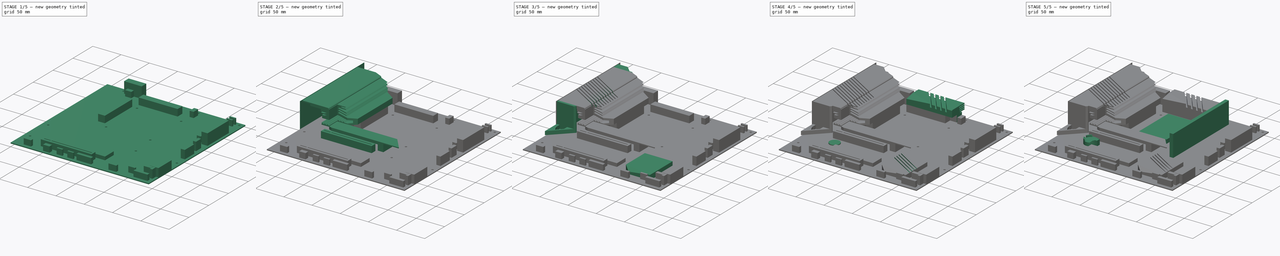
[diagram: build sequence overview — one tinted view per stage of 5, left to right]
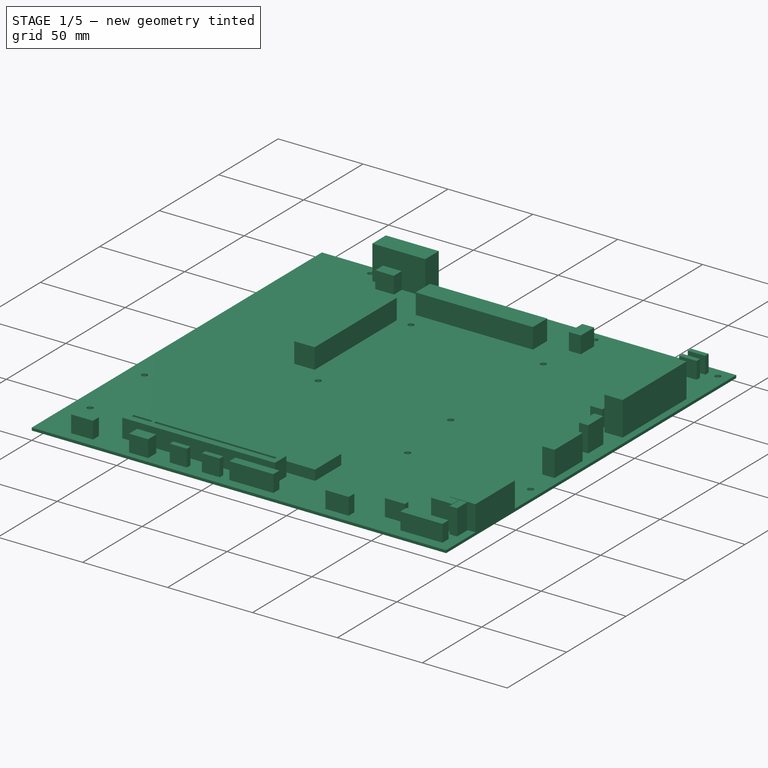
[diagram: stage 1 of 5 — iso view after this stage's code; geometry added in this stage tinted green]
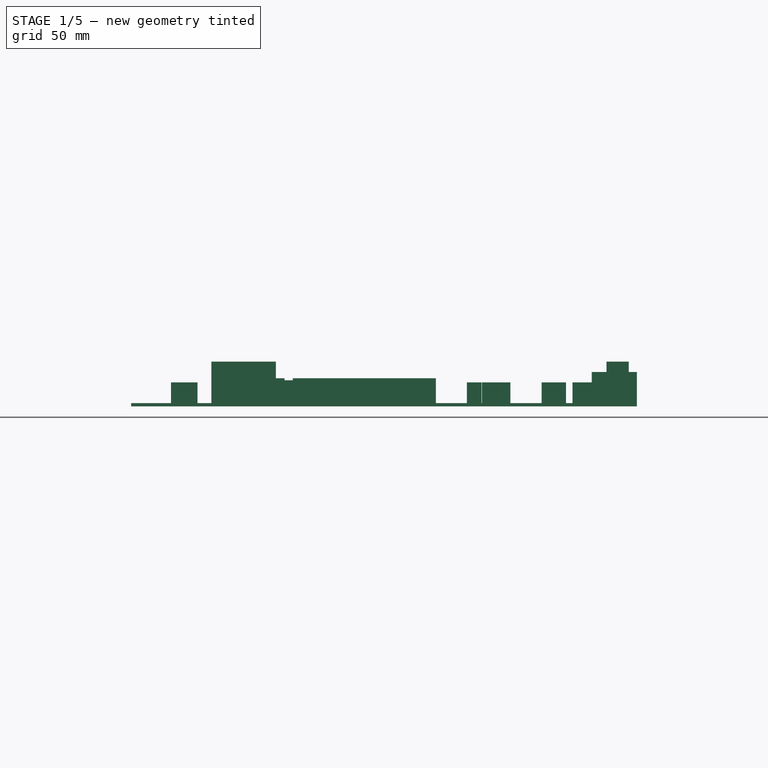
[diagram: stage 1 of 5 — front view after this stage's code; geometry added in this stage tinted green]
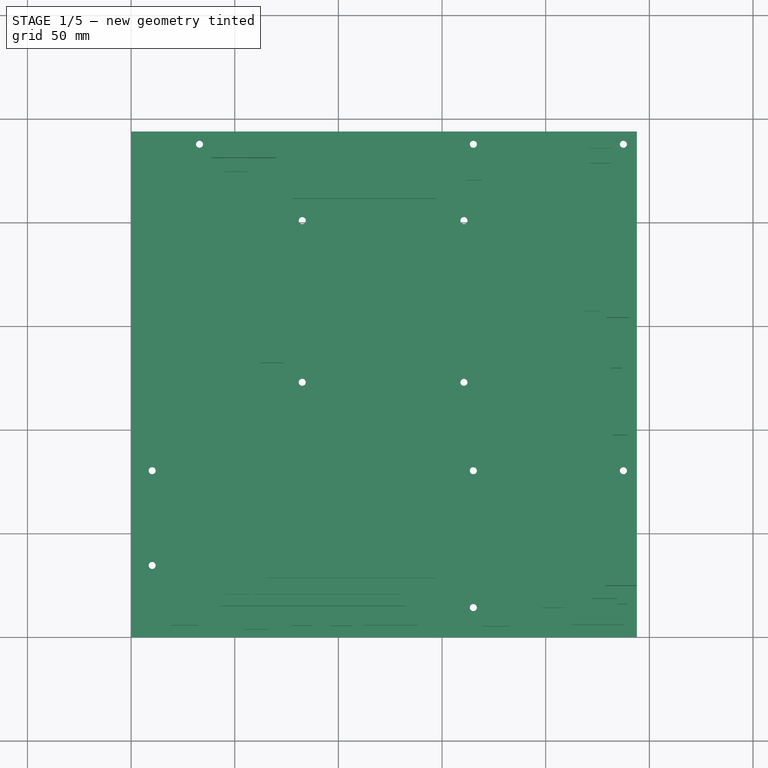
[diagram: stage 1 of 5 — top view after this stage's code; geometry added in this stage tinted green]
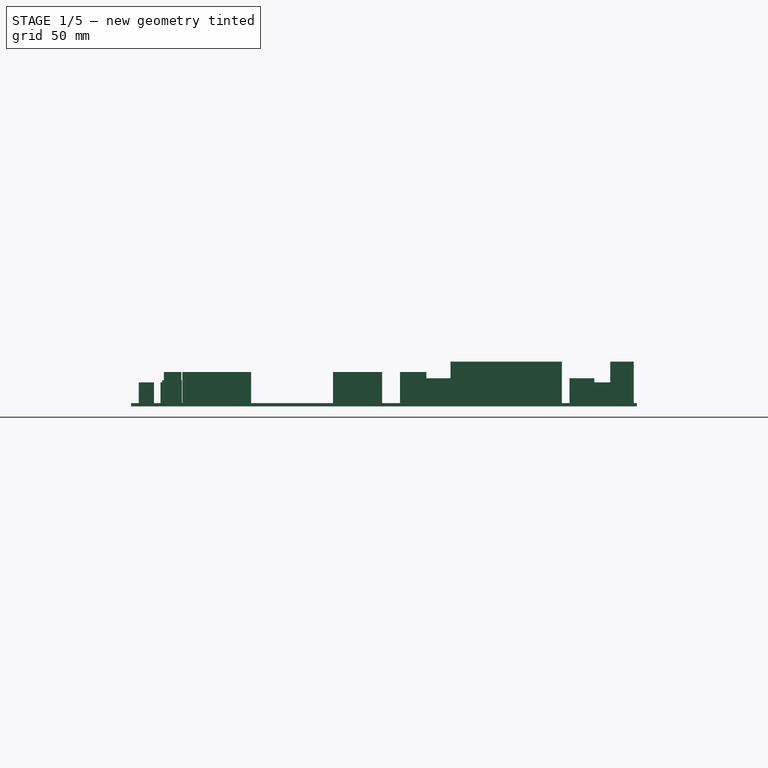
[diagram: stage 1 of 5 — right view after this stage's code; geometry added in this stage tinted green]
FCSTD DOCUMENT  (FreeCAD 0.21R33771 (Git))
Label: gigabyte-b760m-aorus-elite-ax
License: All rights reserved
LicenseURL: http://en.wikipedia.org/wiki/All_rights_reserved
objects: Sketcher::SketchObject×40, PartDesign::Pad×23, PartDesign::Pocket×16, PartDesign::Body×15, PartDesign::Plane×4, App::Part×3, PartDesign::Chamfer×3, PartDesign::Hole×1, PartDesign::LinearPattern×1
note: 146 computed .brp shape members not serialized (recipe doc carries the construction recipe); baked Part::Feature solids carry a one-line shape summary decoded from their .brp

FEATURE [PartDesign::Body] Body009  label="内存条004"
  Group = -> [Sketch082,Pad052]
  Origin = -> Origin009
  Placement = pos=(26.7,0,20) rot=(0,0,1;0rad)
  Tip = -> Pad052
FEATURE [App::Part] Part  label="内存条组"
  Group = -> [Body009,Body008,Body007,Body006]
  Origin = -> Origin010
  Placement = pos=(0,0,-18.4) rot=(0,0,1;0rad)
FEATURE [Sketcher::SketchObject] Sketch083
  FullyConstrained = true
  MapMode = 5
  Support = -> [XY_Plane011]
  sketch-geometry (4):
    g0: LineSegment StartX=0 StartY=0 StartZ=0 EndX=244 EndY=0 EndZ=0
    g1: LineSegment StartX=244 StartY=0 StartZ=0 EndX=244 EndY=244 EndZ=0
    g2: LineSegment StartX=244 StartY=244 StartZ=0 EndX=0 EndY=244 EndZ=0
    g3: LineSegment StartX=0 StartY=244 StartZ=0 EndX=0 EndY=0 EndZ=0
  constraints (11):
    c: Coincident(g0,g1)
    c: Coincident(g1,g2)
    c: Coincident(g2,g3)
    c: Coincident(g3,g0)
    c: Horizontal(g0)
    c: Horizontal(g2)
    c: Vertical(g1)
    c: Vertical(g3)
    c: Coincident(g0,g-1)
    c: DistanceX(g2,g2) = 244
    c: DistanceY(g1,g1) = 244
FEATURE [PartDesign::Pad] Pad053  label="板子001"
  Direction = (0,0,1)
  Length = 1.6
  Length2 = 10
  Profile = -> Sketch083
  ReferenceAxis = -> Sketch083 [N_Axis]
  Type = 0
FEATURE [Sketcher::SketchObject] Sketch084
  FullyConstrained = false
  MapMode = 5
  Placement = pos=(0,0,1.6) rot=(0,0,1;0rad)
  Support = -> [Pad053]
  sketch-geometry (52):
    g0: LineSegment StartX=19.259 StartY=10.6357 StartZ=0 EndX=32.0645 EndY=10.6357 EndZ=0
    g1: LineSegment StartX=32.0645 StartY=10.6357 StartZ=0 EndX=32.0645 EndY=5.64945 EndZ=0
    g2: LineSegment StartX=32.0645 StartY=5.64945 StartZ=0 EndX=19.259 EndY=5.64945 EndZ=0
    g3: LineSegment StartX=19.259 StartY=5.64945 StartZ=0 EndX=19.259 EndY=10.6357 EndZ=0
    g4: LineSegment StartX=54.7719 StartY=10.4096 StartZ=0 EndX=65.991 EndY=10.4096 EndZ=0
    g5: LineSegment StartX=65.991 StartY=10.4096 StartZ=0 EndX=65.991 EndY=3.66686 EndZ=0
    g6: LineSegment StartX=65.991 StartY=3.66686 StartZ=0 EndX=54.7719 EndY=3.66686 EndZ=0
    g7: LineSegment StartX=54.7719 StartY=3.66686 StartZ=0 EndX=54.7719 EndY=10.4096 EndZ=0
    g8: LineSegment StartX=77.397 StartY=8.59368 StartZ=0 EndX=87.4828 EndY=8.59368 EndZ=0
    g9: LineSegment StartX=87.4828 StartY=8.59368 StartZ=0 EndX=87.4828 EndY=5.53395 EndZ=0
    g10: LineSegment StartX=87.4828 StartY=5.53395 StartZ=0 EndX=77.397 EndY=5.53395 EndZ=0
    g11: LineSegment StartX=77.397 StartY=5.53395 StartZ=0 EndX=77.397 EndY=8.59368 EndZ=0
    g12: LineSegment StartX=96.3528 StartY=8.47912 StartZ=0 EndX=106.835 EndY=8.47912 EndZ=0
    g13: LineSegment StartX=106.835 StartY=8.47912 StartZ=0 EndX=106.835 EndY=5.47605 EndZ=0
    g14: LineSegment StartX=106.835 StartY=5.47605 StartZ=0 EndX=96.3528 EndY=5.47605 EndZ=0
    g15: LineSegment StartX=96.3528 StartY=5.47605 StartZ=0 EndX=96.3528 EndY=8.47912 EndZ=0
    g16: LineSegment StartX=112.418 StartY=10.7517 StartZ=0 EndX=138.312 EndY=10.7517 EndZ=0
    g17: LineSegment StartX=138.312 StartY=10.7517 StartZ=0 EndX=138.312 EndY=5.6521 EndZ=0
    g18: LineSegment StartX=138.312 StartY=5.6521 StartZ=0 EndX=112.418 EndY=5.6521 EndZ=0
    g19: LineSegment StartX=112.418 StartY=5.6521 StartZ=0 EndX=112.418 EndY=10.7517 EndZ=0
    g20: LineSegment StartX=169.207 StartY=10.0151 StartZ=0 EndX=182.979 EndY=10.0151 EndZ=0
    g21: LineSegment StartX=182.979 StartY=10.0151 StartZ=0 EndX=182.979 EndY=5.23984 EndZ=0
    g22: LineSegment StartX=182.979 StartY=5.23984 StartZ=0 EndX=169.207 EndY=5.23984 EndZ=0
    g23: LineSegment StartX=169.207 StartY=5.23984 StartZ=0 EndX=169.207 EndY=10.0151 EndZ=0
    g24: LineSegment StartX=212.933 StartY=11.0553 StartZ=0 EndX=237.709 EndY=11.0553 EndZ=0
    g25: LineSegment StartX=237.709 StartY=11.0553 StartZ=0 EndX=237.709 EndY=5.934 EndZ=0
    g26: LineSegment StartX=237.709 StartY=5.934 StartZ=0 EndX=212.933 EndY=5.934 EndZ=0
    g27: LineSegment StartX=212.933 StartY=5.934 StartZ=0 EndX=212.933 EndY=11.0553 EndZ=0
    g28: LineSegment StartX=198.015 StartY=17.0917 StartZ=0 EndX=209.78 EndY=17.0917 EndZ=0
    g29: LineSegment StartX=209.78 StartY=17.0917 StartZ=0 EndX=209.78 EndY=14.185 EndZ=0
    g30: LineSegment StartX=209.78 StartY=14.185 StartZ=0 EndX=198.015 EndY=14.185 EndZ=0
    g31: LineSegment StartX=198.015 StartY=14.185 StartZ=0 EndX=198.015 EndY=17.0917 EndZ=0
    g32: LineSegment StartX=218.736 StartY=168.433 StartZ=0 EndX=225.865 EndY=168.433 EndZ=0
    g33: LineSegment StartX=225.865 StartY=168.433 StartZ=0 EndX=225.865 EndY=157.29 EndZ=0
    g34: LineSegment StartX=225.865 StartY=157.29 StartZ=0 EndX=218.736 EndY=157.29 EndZ=0
    g35: LineSegment StartX=218.736 StartY=157.29 StartZ=0 EndX=218.736 EndY=168.433 EndZ=0
    g36: LineSegment StartX=221.19 StartY=238.649 StartZ=0 EndX=231.502 EndY=238.649 EndZ=0
    g37: LineSegment StartX=231.502 StartY=238.649 StartZ=0 EndX=231.502 EndY=235.811 EndZ=0
    g38: LineSegment StartX=231.502 StartY=235.811 StartZ=0 EndX=221.19 EndY=235.811 EndZ=0
    g39: LineSegment StartX=221.19 StartY=235.811 StartZ=0 EndX=221.19 EndY=238.649 EndZ=0
    g40: LineSegment StartX=221.121 StartY=231.451 StartZ=0 EndX=231.433 EndY=231.451 EndZ=0
    g41: LineSegment StartX=231.433 StartY=231.451 StartZ=0 EndX=231.433 EndY=228.614 EndZ=0
    g42: LineSegment StartX=231.433 StartY=228.614 StartZ=0 EndX=221.121 EndY=228.614 EndZ=0
    g43: LineSegment StartX=221.121 StartY=228.614 StartZ=0 EndX=221.121 EndY=231.451 EndZ=0
    g44: LineSegment StartX=161.991 StartY=231.634 StartZ=0 EndX=169.007 EndY=231.634 EndZ=0
    g45: LineSegment StartX=169.007 StartY=231.634 StartZ=0 EndX=169.007 EndY=220.392 EndZ=0
    g46: LineSegment StartX=169.007 StartY=220.392 StartZ=0 EndX=161.991 EndY=220.392 EndZ=0
    g47: LineSegment StartX=161.991 StartY=220.392 StartZ=0 EndX=161.991 EndY=231.634 EndZ=0
    g48: LineSegment StartX=45.036 StartY=231.045 StartZ=0 EndX=56.0526 EndY=231.045 EndZ=0
    g49: LineSegment StartX=56.0526 StartY=231.045 StartZ=0 EndX=56.0526 EndY=224.541 EndZ=0
    g50: LineSegment StartX=56.0526 StartY=224.541 StartZ=0 EndX=45.036 EndY=224.541 EndZ=0
    g51: LineSegment StartX=45.036 StartY=224.541 StartZ=0 EndX=45.036 EndY=231.045 EndZ=0
  constraints (104):
    c: Coincident(g0,g1)
    c: Coincident(g1,g2)
    c: Coincident(g2,g3)
    c: Coincident(g3,g0)
    c: Horizontal(g0)
    c: Horizontal(g2)
    c: Vertical(g1)
    c: Vertical(g3)
    c: Coincident(g4,g5)
    c: Coincident(g5,g6)
    c: Coincident(g6,g7)
    c: Coincident(g7,g4)
    c: Horizontal(g4)
    c: Horizontal(g6)
    c: Vertical(g5)
    c: Vertical(g7)
    c: Coincident(g8,g9)
    c: Coincident(g9,g10)
    c: Coincident(g10,g11)
    c: Coincident(g11,g8)
    c: Horizontal(g8)
    c: Horizontal(g10)
    c: Vertical(g9)
    c: Vertical(g11)
    c: Coincident(g12,g13)
    c: Coincident(g13,g14)
    c: Coincident(g14,g15)
    c: Coincident(g15,g12)
    c: Horizontal(g12)
    c: Horizontal(g14)
    c: Vertical(g13)
    c: Vertical(g15)
    c: Coincident(g16,g17)
    c: Coincident(g17,g18)
    c: Coincident(g18,g19)
    c: Coincident(g19,g16)
    c: Horizontal(g16)
    c: Horizontal(g18)
    c: Vertical(g17)
    c: Vertical(g19)
    c: Coincident(g20,g21)
    c: Coincident(g21,g22)
    c: Coincident(g22,g23)
    c: Coincident(g23,g20)
    c: Horizontal(g20)
    c: Horizontal(g22)
    c: Vertical(g21)
    c: Vertical(g23)
    c: Coincident(g24,g25)
    c: Coincident(g25,g26)
    c: Coincident(g26,g27)
    c: Coincident(g27,g24)
    c: Horizontal(g24)
    c: Horizontal(g26)
    c: Vertical(g25)
    c: Vertical(g27)
    c: Coincident(g28,g29)
    c: Coincident(g29,g30)
    c: Coincident(g30,g31)
    c: Coincident(g31,g28)
    c: Horizontal(g28)
    c: Horizontal(g30)
    c: Vertical(g29)
    c: Vertical(g31)
    c: Coincident(g32,g33)
    c: Coincident(g33,g34)
    c: Coincident(g34,g35)
    c: Coincident(g35,g32)
    c: Horizontal(g32)
    c: Horizontal(g34)
    c: Vertical(g33)
    c: Vertical(g35)
    c: Coincident(g36,g37)
    c: Coincident(g37,g38)
    c: Coincident(g38,g39)
    c: Coincident(g39,g36)
    c: Horizontal(g36)
    c: Horizontal(g38)
    c: Vertical(g37)
    c: Vertical(g39)
    c: Coincident(g40,g41)
    c: Coincident(g41,g42)
    c: Coincident(g42,g43)
    c: Coincident(g43,g40)
    c: Horizontal(g40)
    c: Horizontal(g42)
    c: Vertical(g41)
    c: Vertical(g43)
    c: Coincident(g44,g45)
    c: Coincident(g45,g46)
    c: Coincident(g46,g47)
    c: Coincident(g47,g44)
    c: Horizontal(g44)
    c: Horizontal(g46)
    c: Vertical(g45)
    c: Vertical(g47)
    c: Coincident(g48,g49)
    c: Coincident(g49,g50)
    c: Coincident(g50,g51)
    c: Coincident(g51,g48)
    c: Horizontal(g48)
    c: Horizontal(g50)
    c: Vertical(g49)
    c: Vertical(g51)
FEATURE [PartDesign::Pad] Pad054  label="矮插头001"
  BaseFeature = -> Pad053
  Direction = (0,0,1)
  Length = 10
  Length2 = 10
  Profile = -> Sketch084
  ReferenceAxis = -> Sketch084 [N_Axis]
  Type = 0
FEATURE [Sketcher::SketchObject] Sketch085
  ExternalGeometry = -> [Pad054]
  FullyConstrained = false
  MapMode = 5
  Placement = pos=(0,0,1.6) rot=(0,0,1;0rad)
  Support = -> [Pad054]
  sketch-geometry (20):
    g0: LineSegment StartX=244 StartY=57.8858 StartZ=0 EndX=228.747 EndY=57.8858 EndZ=0
    g1: LineSegment StartX=228.747 StartY=57.8858 StartZ=0 EndX=228.747 EndY=24.7208 EndZ=0
    g2: LineSegment StartX=228.747 StartY=24.7208 StartZ=0 EndX=244 EndY=24.7208 EndZ=0
    g3: LineSegment StartX=244 StartY=24.7208 StartZ=0 EndX=244 EndY=57.8858 EndZ=0
    g4: LineSegment StartX=232.423 StartY=121.097 StartZ=0 EndX=239.61 EndY=121.097 EndZ=0
    g5: LineSegment StartX=239.61 StartY=121.097 StartZ=0 EndX=239.61 EndY=97.3893 EndZ=0
    g6: LineSegment StartX=239.61 StartY=97.3893 StartZ=0 EndX=232.423 EndY=97.3893 EndZ=0
    g7: LineSegment StartX=232.423 StartY=97.3893 StartZ=0 EndX=232.423 EndY=121.097 EndZ=0
    g8: LineSegment StartX=231.414 StartY=142.446 StartZ=0 EndX=236.837 EndY=142.446 EndZ=0
    g9: LineSegment StartX=236.837 StartY=142.446 StartZ=0 EndX=236.837 EndY=129.71 EndZ=0
    g10: LineSegment StartX=236.837 StartY=129.71 StartZ=0 EndX=231.414 EndY=129.71 EndZ=0
    g11: LineSegment StartX=231.414 StartY=129.71 StartZ=0 EndX=231.414 EndY=142.446 EndZ=0
    g12: LineSegment StartX=222.209 StartY=24.2854 StartZ=0 EndX=234.635 EndY=24.2854 EndZ=0
    g13: LineSegment StartX=234.635 StartY=24.2854 StartZ=0 EndX=234.635 EndY=18.5353 EndZ=0
    g14: LineSegment StartX=234.635 StartY=18.5353 StartZ=0 EndX=222.209 EndY=18.5353 EndZ=0
    g15: LineSegment StartX=222.209 StartY=18.5353 StartZ=0 EndX=222.209 EndY=24.2854 EndZ=0
    g16: LineSegment StartX=234.888 StartY=24.2854 StartZ=0 EndX=239.4 EndY=24.2854 EndZ=0
    g17: LineSegment StartX=239.4 StartY=24.2854 StartZ=0 EndX=239.4 EndY=15.8358 EndZ=0
    g18: LineSegment StartX=239.4 StartY=15.8358 StartZ=0 EndX=234.888 EndY=15.8358 EndZ=0
    g19: LineSegment StartX=234.888 StartY=15.8358 StartZ=0 EndX=234.888 EndY=24.2854 EndZ=0
  constraints (43):
    c: Coincident(g0,g1)
    c: Coincident(g1,g2)
    c: Coincident(g2,g3)
    c: Coincident(g3,g0)
    c: Horizontal(g0)
    c: Horizontal(g2)
    c: Vertical(g1)
    c: Vertical(g3)
    c: PointOnObject(g0,g-3)
    c: Coincident(g4,g5)
    c: Coincident(g5,g6)
    c: Coincident(g6,g7)
    c: Coincident(g7,g4)
    c: Horizontal(g4)
    c: Horizontal(g6)
    c: Vertical(g5)
    c: Vertical(g7)
    c: Coincident(g8,g9)
    c: Coincident(g9,g10)
    c: Coincident(g10,g11)
    c: Coincident(g11,g8)
    c: Horizontal(g8)
    c: Horizontal(g10)
    c: Vertical(g9)
    c: Vertical(g11)
    c: Coincident(g12,g13)
    c: Coincident(g13,g14)
    c: Coincident(g14,g15)
    c: Coincident(g15,g12)
    c: Horizontal(g12)
    c: Horizontal(g14)
    c: Vertical(g13)
    c: Vertical(g15)
    c: Coincident(g16,g17)
    c: Coincident(g17,g18)
    c: Coincident(g18,g19)
    c: Coincident(g19,g16)
    c: Horizontal(g16)
    c: Horizontal(g18)
    c: Vertical(g17)
    c: Vertical(g19)
    c: DistanceY(g16,g12) = 0
    c: DistanceX(g17,g2) = 4.6
FEATURE [PartDesign::Pad] Pad055  label="高插头001"
  BaseFeature = -> Pad054
  Direction = (0,0,1)
  Length = 15
  Length2 = 10
  Profile = -> Sketch085
  ReferenceAxis = -> Sketch085 [N_Axis]
  Type = 0
FEATURE [Sketcher::SketchObject] Sketch086
  FullyConstrained = false
  MapMode = 5
  Placement = pos=(0,0,1.6) rot=(0,0,1;0rad)
  Support = -> [Pad055]
  sketch-geometry (8):
    g0: LineSegment StartX=229.324 StartY=207.787 StartZ=0 EndX=240.061 EndY=207.787 EndZ=0
    g1: LineSegment StartX=240.061 StartY=207.787 StartZ=0 EndX=240.061 EndY=154.1 EndZ=0
    g2: LineSegment StartX=240.061 StartY=154.1 StartZ=0 EndX=229.324 EndY=154.1 EndZ=0
    g3: LineSegment StartX=229.324 StartY=154.1 StartZ=0 EndX=229.324 EndY=207.787 EndZ=0
    g4: LineSegment StartX=38.7167 StartY=242.503 StartZ=0 EndX=69.8641 EndY=242.503 EndZ=0
    g5: LineSegment StartX=69.8641 StartY=242.503 StartZ=0 EndX=69.8641 EndY=231.154 EndZ=0
    g6: LineSegment StartX=69.8641 StartY=231.154 StartZ=0 EndX=38.7167 EndY=231.154 EndZ=0
    g7: LineSegment StartX=38.7167 StartY=231.154 StartZ=0 EndX=38.7167 EndY=242.503 EndZ=0
  constraints (16):
    c: Coincident(g0,g1)
    c: Coincident(g1,g2)
    c: Coincident(g2,g3)
    c: Coincident(g3,g0)
    c: Horizontal(g0)
    c: Horizontal(g2)
    c: Vertical(g1)
    c: Vertical(g3)
    c: Coincident(g4,g5)
    c: Coincident(g5,g6)
    c: Coincident(g6,g7)
    c: Coincident(g7,g4)
    c: Horizontal(g4)
    c: Horizontal(g6)
    c: Vertical(g5)
    c: Vertical(g7)
FEATURE [PartDesign::Pad] Pad056  label="电源接口001"
  BaseFeature = -> Pad055
  Direction = (0,0,1)
  Length = 20
  Length2 = 10
  Profile = -> Sketch086
  ReferenceAxis = -> Sketch086 [N_Axis]
  Type = 0
FEATURE [Sketcher::SketchObject] Sketch089
  FullyConstrained = true
  MapMode = 5
  Placement = pos=(0,0,1.6) rot=(0,0,1;0rad)
  sketch-geometry (4):
    g0: LineSegment StartX=42.75 StartY=24.5 StartZ=0 EndX=132.75 EndY=24.5 EndZ=0
    g1: LineSegment StartX=132.75 StartY=24.5 StartZ=0 EndX=132.75 EndY=15 EndZ=0
    g2: LineSegment StartX=132.75 StartY=15 StartZ=0 EndX=42.75 EndY=15 EndZ=0
    g3: LineSegment StartX=42.75 StartY=15 StartZ=0 EndX=42.75 EndY=24.5 EndZ=0
  constraints (12):
    c: Coincident(g0,g1)
    c: Coincident(g1,g2)
    c: Coincident(g2,g3)
    c: Coincident(g3,g0)
    c: Horizontal(g0)
    c: Horizontal(g2)
    c: Vertical(g1)
    c: Vertical(g3)
    c: DistanceY(g3,g3) = 9.5
    c: DistanceX(g0,g0) = 90
    c: DistanceX(g-1,g2) = 42.75
    c: DistanceY(g-1,g2) = 15
FEATURE [PartDesign::Pad] Pad059  label="芯片组x16插口001"
  BaseFeature = -> Pad056
  Direction = (0,0,1)
  Length = 11
  Length2 = 10
  Profile = -> Sketch089
  ReferenceAxis = -> Sketch089 [N_Axis]
  Type = 0
FEATURE [Sketcher::SketchObject] Sketch090
  FullyConstrained = true
  MapMode = 5
  Placement = pos=(0,0,1.6) rot=(0,0,1;0rad)
  Support = -> [Pad059]
  sketch-geometry (4):
    g0: LineSegment StartX=65 StartY=50.5 StartZ=0 EndX=146.9 EndY=50.5 EndZ=0
    g1: LineSegment StartX=146.9 StartY=50.5 StartZ=0 EndX=146.9 EndY=28.5 EndZ=0
    g2: LineSegment StartX=146.9 StartY=28.5 StartZ=0 EndX=65 EndY=28.5 EndZ=0
    g3: LineSegment StartX=65 StartY=28.5 StartZ=0 EndX=65 EndY=50.5 EndZ=0
  constraints (12):
    c: Coincident(g0,g1)
    c: Coincident(g1,g2)
    c: Coincident(g2,g3)
    c: Coincident(g3,g0)
    c: Horizontal(g0)
    c: Horizontal(g2)
    c: Vertical(g1)
    c: Vertical(g3)
    c: DistanceX(g-1,g0) = 65
    c: DistanceY(g3,g3) = 22
    c: DistanceX(g-1,g1) = 146.9
    c: DistanceY(g-1,g2) = 28.5
FEATURE [PartDesign::Pad] Pad061  label="芯片组M.2插口001"
  BaseFeature = -> Pad059
  Direction = (0,0,1)
  Length = 6
  Length2 = 10
  Profile = -> Sketch090
  ReferenceAxis = -> Sketch090 [N_Axis]
  Type = 0
FEATURE [PartDesign::Body] Body012  label="小电池"
  Group = -> [Sketch099,Pad064]
  Origin = -> Origin013
  Placement = pos=(0,0,26) rot=(0,0,1;0rad)
  Tip = -> Pad064
FEATURE [App::Part] Part001  label="电池"
  Group = -> [Body012,Body011]
  Origin = -> Origin014
  Placement = pos=(0,0,-20) rot=(0,0,1;0rad)
FEATURE [Sketcher::SketchObject] Sketch
  ExternalGeometry = -> [Pad061]
  FullyConstrained = true
  MapMode = 5
  Placement = pos=(0,0,1.6) rot=(0,0,1;0rad)
  Support = -> [Pad061]
  sketch-geometry (8):
    g0: LineSegment StartX=78 StartY=211.5 StartZ=0 EndX=147 EndY=211.5 EndZ=0
    g1: LineSegment StartX=147 StartY=211.5 StartZ=0 EndX=147 EndY=223.5 EndZ=0
    g2: LineSegment StartX=147 StartY=223.5 StartZ=0 EndX=78 EndY=223.5 EndZ=0
    g3: LineSegment StartX=78 StartY=223.5 StartZ=0 EndX=78 EndY=211.5 EndZ=0
    g4: LineSegment StartX=62 StartY=201.25 StartZ=0 EndX=74 EndY=201.25 EndZ=0
    g5: LineSegment StartX=74 StartY=201.25 StartZ=0 EndX=74 EndY=132.25 EndZ=0
    g6: LineSegment StartX=74 StartY=132.25 StartZ=0 EndX=62 EndY=132.25 EndZ=0
    g7: LineSegment StartX=62 StartY=132.25 StartZ=0 EndX=62 EndY=201.25 EndZ=0
  constraints (24):
    c: Coincident(g0,g1)
    c: Coincident(g1,g2)
    c: Coincident(g2,g3)
    c: Coincident(g3,g0)
    c: Horizontal(g0)
    c: Horizontal(g2)
    c: Vertical(g1)
    c: Vertical(g3)
    c: DistanceY(g-1,g2) = 223.5
    c: DistanceX(g-1,g0) = 78
    c: DistanceX(g-1,g0) = 147
    c: DistanceY(g1,g1) = -12
    c: Coincident(g4,g5)
    c: Coincident(g5,g6)
    c: Coincident(g6,g7)
    c: Coincident(g7,g4)
    c: Horizontal(g4)
    c: Horizontal(g6)
    c: Vertical(g5)
    c: Vertical(g7)
    c: DistanceY(g5,g5) = 69
    c: DistanceX(g4,g4) = 12
    c: DistanceX(g-1,g6) = 62
    c: DistanceY(g4,g-3) = 42.75
FEATURE [Sketcher::SketchObject] Sketch100
  FullyConstrained = false
  MapMode = 5
  Placement = pos=(0,0,1.6) rot=(0,0,1;0rad)
  sketch-geometry (33):
    g0: LineSegment StartX=82.56 StartY=201 StartZ=0 EndX=160.56 EndY=201 EndZ=0
    g1: LineSegment StartX=160.56 StartY=201 StartZ=0 EndX=160.56 EndY=123 EndZ=0
    g2: LineSegment StartX=160.56 StartY=123 StartZ=0 EndX=82.56 EndY=123 EndZ=0
    g3: LineSegment StartX=82.56 StartY=123 StartZ=0 EndX=82.56 EndY=201 EndZ=0
    g4: LineSegment StartX=97.06 StartY=199 StartZ=0 EndX=146.06 EndY=199 EndZ=0
    g5: LineSegment StartX=146.06 StartY=199 StartZ=0 EndX=146.06 EndY=125 EndZ=0
    g6: LineSegment StartX=146.06 StartY=125 StartZ=0 EndX=97.06 EndY=125 EndZ=0
    g7: LineSegment StartX=97.06 StartY=125 StartZ=0 EndX=97.06 EndY=199 EndZ=0
    g8: LineSegment StartX=82.56 StartY=201 StartZ=0 EndX=97.06 EndY=199 EndZ=0
    g9: LineSegment StartX=146.06 StartY=199 StartZ=0 EndX=160.56 EndY=201 EndZ=0
    g10: LineSegment StartX=82.56 StartY=123 StartZ=0 EndX=97.06 EndY=125 EndZ=0
    g11: Circle CenterX=82.56 CenterY=123 CenterZ=0 NormalX=0 NormalY=0 NormalZ=1 AngleXU=0 Radius=3.72781
    g12: Circle CenterX=160.56 CenterY=123 CenterZ=0 NormalX=0 NormalY=0 NormalZ=1 AngleXU=0 Radius=5.16248
    g13: Circle CenterX=160.56 CenterY=201 CenterZ=0 NormalX=0 NormalY=0 NormalZ=1 AngleXU=0 Radius=5.76645
    g14: Circle CenterX=82.56 CenterY=201 CenterZ=0 NormalX=0 NormalY=0 NormalZ=1 AngleXU=0 Radius=4.89547
    g15: LineSegment StartX=10.16 StartY=80.35 StartZ=0 EndX=165.1 EndY=80.35 EndZ=0
    g16: LineSegment StartX=165.1 StartY=80.35 StartZ=0 EndX=165.1 EndY=34.63 EndZ=0
    g17: LineSegment StartX=165.1 StartY=34.63 StartZ=0 EndX=10.16 EndY=34.63 EndZ=0
    g18: LineSegment StartX=10.16 StartY=34.63 StartZ=0 EndX=10.16 EndY=80.35 EndZ=0
    g19: LineSegment StartX=165.1 StartY=80.35 StartZ=0 EndX=237.49 EndY=80.35 EndZ=0
    g20: LineSegment StartX=237.49 StartY=80.35 StartZ=0 EndX=237.49 EndY=237.83 EndZ=0
    g21: LineSegment StartX=237.49 StartY=237.83 StartZ=0 EndX=165.1 EndY=237.83 EndZ=0
    g22: LineSegment StartX=165.1 StartY=237.83 StartZ=0 EndX=165.1 EndY=80.35 EndZ=0
    g23: LineSegment StartX=165.1 StartY=34.63 StartZ=0 EndX=165.1 EndY=14.31 EndZ=0
    g24: LineSegment StartX=165.1 StartY=237.83 StartZ=0 EndX=33.02 EndY=237.83 EndZ=0
    g25: Circle CenterX=33.02 CenterY=237.83 CenterZ=0 NormalX=0 NormalY=0 NormalZ=1 AngleXU=0 Radius=4.11547
    g26: Circle CenterX=165.1 CenterY=237.83 CenterZ=0 NormalX=0 NormalY=0 NormalZ=1 AngleXU=0 Radius=3.385
    g27: Circle CenterX=237.49 CenterY=237.83 CenterZ=0 NormalX=0 NormalY=0 NormalZ=1 AngleXU=0 Radius=3.82744
    g28: Circle CenterX=237.49 CenterY=80.35 CenterZ=0 NormalX=0 NormalY=0 NormalZ=1 AngleXU=0 Radius=5.8368
    g29: Circle CenterX=165.1 CenterY=80.35 CenterZ=0 NormalX=0 NormalY=0 NormalZ=1 AngleXU=0 Radius=3.6415
    g30: Circle CenterX=165.1 CenterY=14.31 CenterZ=0 NormalX=0 NormalY=0 NormalZ=1 AngleXU=0 Radius=3.47428
    g31: Circle CenterX=10.16 CenterY=34.63 CenterZ=0 NormalX=0 NormalY=0 NormalZ=1 AngleXU=0 Radius=4.39084
    g32: Circle CenterX=10.16 CenterY=80.35 CenterZ=0 NormalX=0 NormalY=0 NormalZ=1 AngleXU=0 Radius=3.97432
  constraints (71):
    c: Coincident(g0,g1)
    c: Coincident(g1,g2)
    c: Coincident(g2,g3)
    c: Coincident(g3,g0)
    c: Horizontal(g0)
    c: Horizontal(g2)
    c: Vertical(g1)
    c: Vertical(g3)
    c: Coincident(g4,g5)
    c: Coincident(g5,g6)
    c: Coincident(g6,g7)
    c: Coincident(g7,g4)
    c: Horizontal(g4)
    c: Horizontal(g6)
    c: Vertical(g5)
    c: Vertical(g7)
    c: DistanceY(g7,g7) = 74
    c: DistanceX(g6,g6) = 49
    c: DistanceX(g-1,g6) = 97.06
    c: DistanceY(g-1,g6) = 125
    c: DistanceX(g0,g0) = 78
    c: DistanceY(g3,g3) = 78
    c: Coincident(g8,g0)
    c: Coincident(g8,g4)
    c: Coincident(g9,g4)
    c: Coincident(g9,g0)
    c: Coincident(g10,g2)
    c: Coincident(g10,g6)
    c: Equal(g10,g8)
    c: Equal(g8,g9)
    c: Coincident(g11,g2)
    c: Coincident(g12,g1)
    c: Coincident(g13,g0)
    c: Coincident(g14,g0)
    c: Coincident(g15,g16)
    c: Coincident(g16,g17)
    c: Coincident(g17,g18)
    c: Coincident(g18,g15)
    c: Horizontal(g15)
    c: Horizontal(g17)
    c: Vertical(g16)
    c: Vertical(g18)
    c: Coincident(g19,g20)
    c: Coincident(g20,g21)
    c: Coincident(g21,g22)
    c: Coincident(g22,g19)
    c: Horizontal(g19)
    c: Horizontal(g21)
    c: Vertical(g20)
    c: Vertical(g22)
    c: Coincident(g19,g15)
    c: Coincident(g23,g16)
    c: Vertical(g23)
    c: Coincident(g24,g21)
    c: Horizontal(g24)
    c: DistanceY(g23,g-1) = -14.31
    c: DistanceX(g-1,g17) = 10.16
    c: DistanceX(g15,g24) = 22.86
    c: DistanceY(g-1,g17) = 34.63
    c: DistanceY(g17,g15) = 45.72
    c: DistanceY(g20,g20) = 157.48
    c: DistanceX(g15,g15) = 154.94
    c: DistanceX(g19,g19) = 72.39
    c: Coincident(g25,g24)
    c: Coincident(g26,g21)
    c: Coincident(g27,g20)
    c: Coincident(g28,g19)
    c: Coincident(g29,g15)
    c: Coincident(g30,g23)
    c: Coincident(g31,g17)
    c: Coincident(g32,g15)
FEATURE [PartDesign::Hole] Hole  label="螺丝孔"
  BaseFeature = -> Pad061
  CustomThreadClearance = 0
  Depth = 698.402
  DepthType = 1
  Diameter = 3.4
  DrillForDepth = false
  DrillPoint = 1
  DrillPointAngle = 118
  HoleCutCountersinkAngle = 90
  HoleCutCustomValues = false
  HoleCutDepth = 0
  HoleCutDiameter = 6.1
  HoleCutType = 0
  ModelThread = false
  Profile = -> Sketch100
  Tapered = false
  TaperedAngle = 90
  ThreadClass = 0
  ThreadDepth = 698.402
  ThreadDepthType = 0
  ThreadDirection = 0
  ThreadFit = 0
  ThreadSize = 9
  ThreadType = 1
  Threaded = false
  UseCustomThreadClearance = false
FEATURE [PartDesign::Pad] Pad  label="mos管"
  BaseFeature = -> Hole
  Direction = (0,0,1)
  Length = 12
  Length2 = 10
  Profile = -> Sketch
  ReferenceAxis = -> Sketch [N_Axis]
  Type = 0
FEATURE [PartDesign::Body] Body005  label="CPU x16插口"
  Group = -> [Sketch073,Pad048,Sketch103,Pocket028]
  Origin = -> Origin005
  Tip = -> Pocket028
FEATURE [Sketcher::SketchObject] Sketch116
  ExternalGeometry = -> [Pad]
  FullyConstrained = true
  MapMode = 5
  Placement = pos=(0,0,12.6) rot=(0,0,1;0rad)
  Support = -> [Pad]
  sketch-geometry (12):
    g0: LineSegment StartX=45.65 StartY=20.55 StartZ=0 EndX=56.85 EndY=20.55 EndZ=0
    g1: LineSegment StartX=56.85 StartY=20.55 StartZ=0 EndX=56.85 EndY=18.95 EndZ=0
    g2: LineSegment StartX=56.85 StartY=18.95 StartZ=0 EndX=45.65 EndY=18.95 EndZ=0
    g3: LineSegment StartX=45.65 StartY=18.95 StartZ=0 EndX=45.65 EndY=20.55 EndZ=0
    g4: LineSegment StartX=58.7 StartY=20.55 StartZ=0 EndX=129.85 EndY=20.55 EndZ=0
    g5: LineSegment StartX=129.85 StartY=20.55 StartZ=0 EndX=129.85 EndY=18.95 EndZ=0
    g6: LineSegment StartX=129.85 StartY=18.95 StartZ=0 EndX=58.7 EndY=18.95 EndZ=0
    g7: LineSegment StartX=58.7 StartY=18.95 StartZ=0 EndX=58.7 EndY=20.55 EndZ=0
    g8: LineSegment StartX=56.85 StartY=20.55 StartZ=0 EndX=58.7 EndY=20.55 EndZ=0
    g9: LineSegment StartX=42.75 StartY=24.5 StartZ=0 EndX=45.65 EndY=20.55 EndZ=0
    g10: LineSegment StartX=45.65 StartY=18.95 StartZ=0 EndX=42.75 EndY=15 EndZ=0
    g11: LineSegment StartX=132.75 StartY=24.5 StartZ=0 EndX=129.85 EndY=20.55 EndZ=0
  constraints (32):
    c: Coincident(g0,g1)
    c: Coincident(g1,g2)
    c: Coincident(g2,g3)
    c: Coincident(g3,g0)
    c: Horizontal(g0)
    c: Horizontal(g2)
    c: Vertical(g1)
    c: Vertical(g3)
    c: Coincident(g4,g5)
    c: Coincident(g5,g6)
    c: Coincident(g6,g7)
    c: Coincident(g7,g4)
    c: Horizontal(g4)
    c: Horizontal(g6)
    c: Vertical(g5)
    c: Vertical(g7)
    c: Coincident(g8,g0)
    c: Coincident(g8,g4)
    c: Horizontal(g8)
    c: Equal(g7,g1)
    c: DistanceX(g8,g8) = 1.85
    c: DistanceX(g4,g4) = 71.15
    c: DistanceX(g0,g0) = 11.2
    c: DistanceY(g3,g3) = 1.6
    c: Coincident(g9,g-3)
    c: Coincident(g9,g0)
    c: Coincident(g10,g2)
    c: Coincident(g10,g-4)
    c: Coincident(g11,g-3)
    c: Coincident(g11,g4)
    c: Equal(g11,g9)
    c: Equal(g9,g10)
FEATURE [PartDesign::Pocket] Pocket029
  BaseFeature = -> Pad
  Direction = (0,0,-1)
  Length = 7.35
  Length2 = 5
  Profile = -> Sketch116
  ReferenceAxis = -> Sketch116 [N_Axis]
  Type = 0
FEATURE [PartDesign::Body] Body010  label="大板子"
  Group = -> [Sketch083,Pad053,Sketch084,Pad054,Sketch085,Pad055,Sketch086,Pad056,Sketch089,Pad059,Sketch090,Pad061,Hole,Sketch100,Sketch,Pad,Sketch116,Pocket029]
  Origin = -> Origin011
  Tip = -> Pocket029
FEATURE [App::Part] Part002  label="主板"
  Group = -> [Part001,Body010,Part,Body005,Body004,Body003,Body002,Body013,Body,Body014,Body015]
  Origin = -> Origin
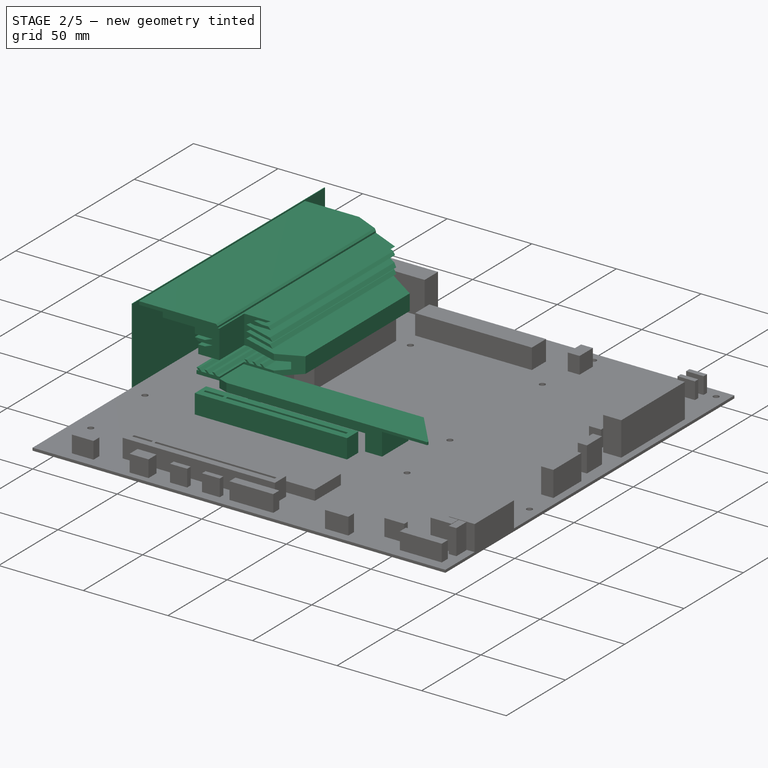
[diagram: stage 2 of 5 — iso view after this stage's code; geometry added in this stage tinted green]
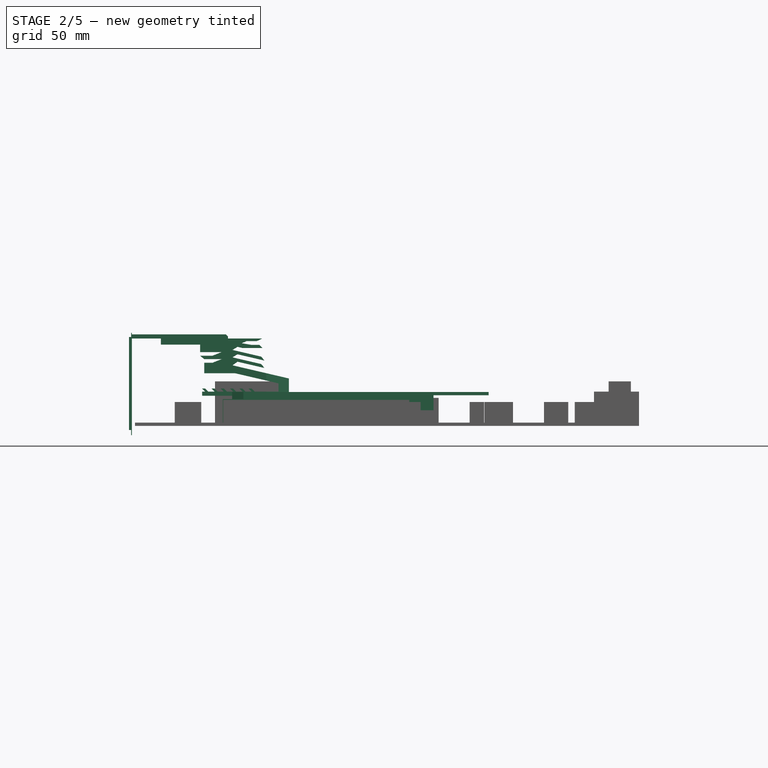
[diagram: stage 2 of 5 — front view after this stage's code; geometry added in this stage tinted green]
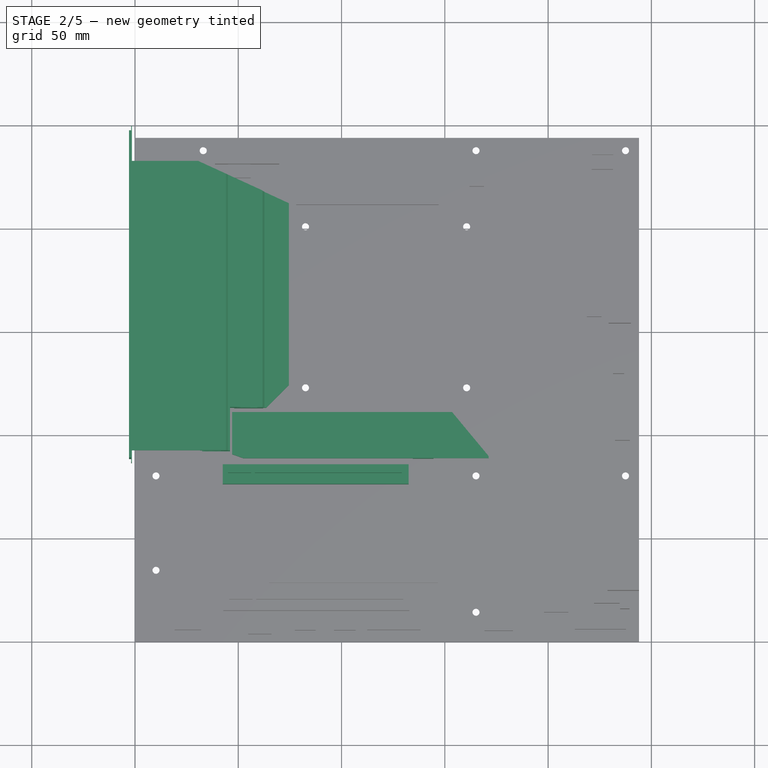
[diagram: stage 2 of 5 — top view after this stage's code; geometry added in this stage tinted green]
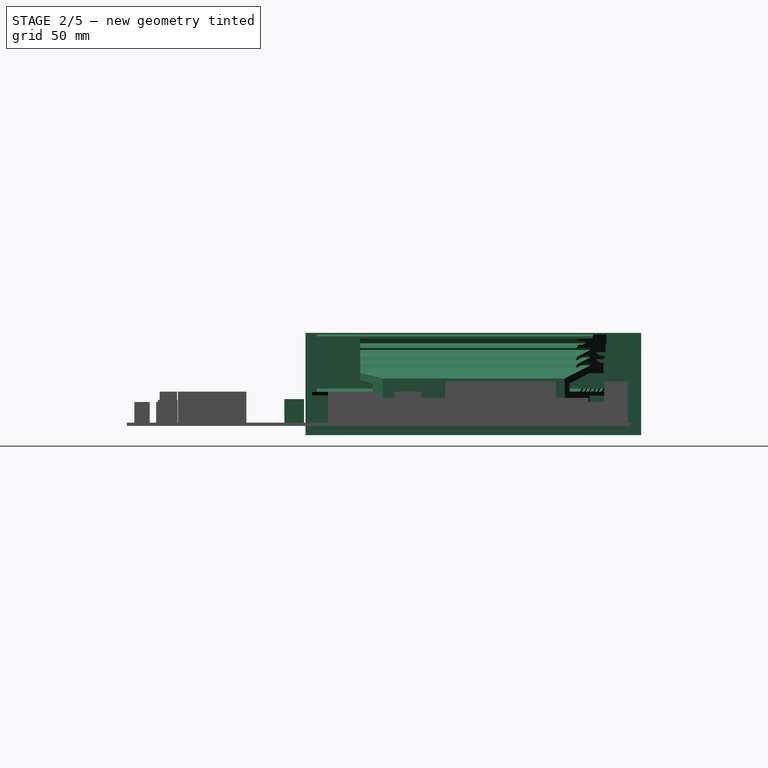
[diagram: stage 2 of 5 — right view after this stage's code; geometry added in this stage tinted green]
FEATURE [PartDesign::Body] Body004  label="CPU顶盖"
  Group = -> [Sketch067,Pad042]
  Origin = -> Origin004
  Tip = -> Pad042
FEATURE [Sketcher::SketchObject] Sketch073
  FullyConstrained = true
  MapMode = 5
  Placement = pos=(0,0,1.6) rot=(0,0,1;0rad)
  sketch-geometry (4):
    g0: LineSegment StartX=42.5 StartY=85.75 StartZ=0 EndX=132.5 EndY=85.75 EndZ=0
    g1: LineSegment StartX=132.5 StartY=85.75 StartZ=0 EndX=132.5 EndY=76.25 EndZ=0
    g2: LineSegment StartX=132.5 StartY=76.25 StartZ=0 EndX=42.5 EndY=76.25 EndZ=0
    g3: LineSegment StartX=42.5 StartY=76.25 StartZ=0 EndX=42.5 EndY=85.75 EndZ=0
  constraints (12):
    c: Coincident(g0,g1)
    c: Coincident(g1,g2)
    c: Coincident(g2,g3)
    c: Coincident(g3,g0)
    c: Horizontal(g0)
    c: Horizontal(g2)
    c: Vertical(g1)
    c: Vertical(g3)
    c: DistanceX(g-1,g2) = 42.5
    c: DistanceY(g3,g3) = 9.5
    c: DistanceY(g-1,g2) = 76.25
    c: DistanceX(g0,g0) = 90
FEATURE [PartDesign::Pad] Pad048  label="CPU x16插口001"
  Direction = (0,0,1)
  Length = 11.4
  Length2 = 10
  Placement = pos=(0,0,1.6) rot=(0,0,1;0rad)
  Profile = -> Sketch073
  ReferenceAxis = -> Sketch073 [N_Axis]
  Type = 0
FEATURE [PartDesign::Body] Body  label="io板塑料"
  Group = -> [Sketch105,Pad065,Sketch106,Pocket022,Sketch107,Pocket023,Sketch108,Pocket024]
  Origin = -> Origin017
  Tip = -> Pocket024
FEATURE [Sketcher::SketchObject] Sketch109
  FullyConstrained = true
  MapMode = 5
  Placement = pos=(0,232.15,5.15e-14) rot=(1,0,0;1.5708rad)
  Support = -> [DatumPlane001]
  sketch-geometry (96):
    g0: LineSegment StartX=-1.5 StartY=44.35 StartZ=0 EndX=44 EndY=44.35 EndZ=0
    g1: LineSegment StartX=-1.5 StartY=44.35 StartZ=0 EndX=-1.5 EndY=42.35 EndZ=0
    g2: LineSegment StartX=31.5 StartY=39.35 StartZ=0 EndX=31.5 EndY=35.75 EndZ=0
    g3: LineSegment StartX=31.5 StartY=35.75 StartZ=0 EndX=42 EndY=35.75 EndZ=0
    g4: LineSegment StartX=42 StartY=35.75 StartZ=0 EndX=37.5 EndY=34 EndZ=0
    g5: LineSegment StartX=37.5 StartY=34 StartZ=0 EndX=31.5 EndY=34 EndZ=0
    g6: LineSegment StartX=31.5 StartY=34 StartZ=0 EndX=33.5 EndY=32.35 EndZ=0
    g7: LineSegment StartX=33.5 StartY=32.35 StartZ=0 EndX=42 EndY=32.35 EndZ=0
    g8: LineSegment StartX=42 StartY=32.35 StartZ=0 EndX=37.5 EndY=30.6 EndZ=0
    g9: LineSegment StartX=37.5 StartY=30.6 StartZ=0 EndX=33.5 EndY=30.6 EndZ=0
    g10: LineSegment StartX=33.5 StartY=30.6 StartZ=0 EndX=33.5 EndY=25.5 EndZ=0
    g11: LineSegment StartX=48.5 StartY=25.5 StartZ=0 EndX=69.5 EndY=20.6 EndZ=0
    g12: LineSegment StartX=69.5 StartY=20.6 StartZ=0 EndX=69.5 EndY=16.6 EndZ=0
    g13: LineSegment StartX=69.5 StartY=16.6 StartZ=0 EndX=58 EndY=16.6 EndZ=0
    g14: LineSegment StartX=58 StartY=16.6 StartZ=0 EndX=56.5 EndY=18.1 EndZ=0
    g15: LineSegment StartX=56.5 StartY=18.1 StartZ=0 EndX=55 EndY=18.1 EndZ=0
    g16: LineSegment StartX=55 StartY=18.1 StartZ=0 EndX=56.5 EndY=16.6 EndZ=0
    g17: LineSegment StartX=56.5 StartY=16.6 StartZ=0 EndX=53.5 EndY=16.6 EndZ=0
    g18: LineSegment StartX=53.5 StartY=16.6 StartZ=0 EndX=52 EndY=18.1 EndZ=0
    g19: LineSegment StartX=52 StartY=18.1 StartZ=0 EndX=50.5 EndY=18.1 EndZ=0
    g20: LineSegment StartX=50.5 StartY=18.1 StartZ=0 EndX=52 EndY=16.6 EndZ=0
    g21: LineSegment StartX=52 StartY=16.6 StartZ=0 EndX=49 EndY=16.6 EndZ=0
    g22: LineSegment StartX=49 StartY=16.6 StartZ=0 EndX=47.5 EndY=18.1 EndZ=0
    g23: LineSegment StartX=47.5 StartY=18.1 StartZ=0 EndX=46 EndY=18.1 EndZ=0
    g24: LineSegment StartX=46 StartY=18.1 StartZ=0 EndX=47.5 EndY=16.6 EndZ=0
    g25: LineSegment StartX=47.5 StartY=16.6 StartZ=0 EndX=44.5 EndY=16.6 EndZ=0
    g26: LineSegment StartX=44.5 StartY=16.6 StartZ=0 EndX=43 EndY=18.1 EndZ=0
    g27: LineSegment StartX=43 StartY=18.1 StartZ=0 EndX=41.5 EndY=18.1 EndZ=0
    g28: LineSegment StartX=41.5 StartY=18.1 StartZ=0 EndX=43 EndY=16.6 EndZ=0
    g29: LineSegment StartX=43 StartY=16.6 StartZ=0 EndX=40 EndY=16.6 EndZ=0
    g30: LineSegment StartX=40 StartY=16.6 StartZ=0 EndX=38.5 EndY=18.1 EndZ=0
    g31: LineSegment StartX=38.5 StartY=18.1 StartZ=0 EndX=37 EndY=18.1 EndZ=0
    g32: LineSegment StartX=37 StartY=18.1 StartZ=0 EndX=38.5 EndY=16.6 EndZ=0
    g33: LineSegment StartX=38.5 StartY=16.6 StartZ=0 EndX=35.5 EndY=16.6 EndZ=0
    g34: LineSegment StartX=35.5 StartY=16.6 StartZ=0 EndX=34 EndY=18.1 EndZ=0
    g35: LineSegment StartX=34 StartY=18.1 StartZ=0 EndX=32.5 EndY=18.1 EndZ=0
    g36: LineSegment StartX=32.5 StartY=18.1 StartZ=0 EndX=34 EndY=16.6 EndZ=0
    g37: LineSegment StartX=34 StartY=16.6 StartZ=0 EndX=32.5 EndY=16.6 EndZ=0
    g38: LineSegment StartX=32.5 StartY=16.6 StartZ=0 EndX=32.5 EndY=14.6 EndZ=0
    g39: LineSegment StartX=32.5 StartY=14.6 StartZ=0 EndX=48 EndY=14.6 EndZ=0
    g40: LineSegment StartX=48 StartY=14.6 StartZ=0 EndX=48 EndY=1.6 EndZ=0
    g41: LineSegment StartX=48 StartY=1.6 StartZ=0 EndX=62 EndY=1.6 EndZ=0
    g42: LineSegment StartX=62 StartY=1.6 StartZ=0 EndX=62 EndY=13.6 EndZ=0
    g43: LineSegment StartX=62 StartY=13.6 StartZ=0 EndX=74.5 EndY=13.6 EndZ=0
    g44: LineSegment StartX=74.5 StartY=13.6 StartZ=0 EndX=74.5 EndY=22.98 EndZ=0
    g45: LineSegment StartX=74.5 StartY=22.98 StartZ=0 EndX=47.2 EndY=29.35 EndZ=0
    g46: LineSegment StartX=47.2 StartY=29.35 StartZ=0 EndX=49.6346 EndY=31.0924 EndZ=0
    g47: LineSegment StartX=49.6346 StartY=31.0924 StartZ=0 EndX=62.7 EndY=28.0438 EndZ=0
    g48: LineSegment StartX=62.7 StartY=28.0438 StartZ=0 EndX=61.0929 EndY=29.9591 EndZ=0
    g49: LineSegment StartX=61.0929 StartY=29.9591 StartZ=0 EndX=47.2 EndY=33.2007 EndZ=0
    g50: LineSegment StartX=47.2 StartY=33.2007 StartZ=0 EndX=49.6346 EndY=34.6864 EndZ=0
    g51: LineSegment StartX=49.6346 StartY=34.6864 StartZ=0 EndX=62.7 EndY=31.6378 EndZ=0
    g52: LineSegment StartX=62.7 StartY=31.6378 StartZ=0 EndX=61.0929 EndY=33.5531 EndZ=0
    g53: LineSegment StartX=61.0929 StartY=33.5531 StartZ=0 EndX=47.2 EndY=36.7947 EndZ=0
    g54: LineSegment StartX=47.2 StartY=36.7947 StartZ=0 EndX=49.6346 EndY=38.2804 EndZ=0
    g55: LineSegment StartX=44 StartY=44.35 StartZ=0 EndX=45 EndY=43.35 EndZ=0
    g56: LineSegment StartX=45 StartY=43.35 StartZ=0 EndX=45 EndY=42.35 EndZ=0
    g57: LineSegment StartX=45 StartY=42.35 StartZ=0 EndX=61.7 EndY=42.35 EndZ=0
    g58: LineSegment StartX=58 StartY=16.6 StartZ=0 EndX=56.5 EndY=16.6 EndZ=0
    g59: LineSegment StartX=53.5 StartY=16.6 StartZ=0 EndX=52 EndY=16.6 EndZ=0
    g60: LineSegment StartX=49 StartY=16.6 StartZ=0 EndX=47.5 EndY=16.6 EndZ=0
    g61: LineSegment StartX=44.5 StartY=16.6 StartZ=0 EndX=43 EndY=16.6 EndZ=0
    g62: LineSegment StartX=40 StartY=16.6 StartZ=0 EndX=38.5 EndY=16.6 EndZ=0
    g63: LineSegment StartX=35.5 StartY=16.6 StartZ=0 EndX=34 EndY=16.6 EndZ=0
    g64: LineSegment StartX=34 StartY=18.1 StartZ=0 EndX=37 EndY=18.1 EndZ=0
    g65: LineSegment StartX=38.5 StartY=18.1 StartZ=0 EndX=41.5 EndY=18.1 EndZ=0
    g66: LineSegment StartX=43 StartY=18.1 StartZ=0 EndX=46 EndY=18.1 EndZ=0
    g67: LineSegment StartX=47.5 StartY=18.1 StartZ=0 EndX=50.5 EndY=18.1 EndZ=0
    g68: LineSegment StartX=52 StartY=18.1 StartZ=0 EndX=55 EndY=18.1 EndZ=0
    g69: LineSegment StartX=32.5 StartY=18.1 StartZ=0 EndX=32.5 EndY=16.6 EndZ=0
    g70: LineSegment StartX=33.5 StartY=25.5 StartZ=0 EndX=48.5 EndY=25.5 EndZ=0
    g71: LineSegment StartX=31.5 StartY=35.75 StartZ=0 EndX=31.5 EndY=34 EndZ=0
    g72: LineSegment StartX=33.5 StartY=32.35 StartZ=0 EndX=33.5 EndY=30.6 EndZ=0
    g73: LineSegment StartX=42 StartY=35.75 StartZ=0 EndX=42 EndY=32.35 EndZ=0
    g74: LineSegment StartX=47.2 StartY=36.7947 StartZ=0 EndX=47.2 EndY=29.35 EndZ=0
    g75: LineSegment StartX=49.6346 StartY=38.2804 StartZ=0 EndX=51.9077 EndY=37.75 EndZ=0
    g76: LineSegment StartX=51.9077 StartY=37.75 StartZ=0 EndX=61.7 EndY=37.75 EndZ=0
    g77: LineSegment StartX=61.7 StartY=37.75 StartZ=0 EndX=60.2 EndY=39.25 EndZ=0
    g78: LineSegment StartX=60.2 StartY=39.25 StartZ=0 EndX=56.2993 EndY=39.25 EndZ=0
    g79: LineSegment StartX=51.7 StartY=40.05 StartZ=0 EndX=53.9996 EndY=41.05 EndZ=0
    g80: LineSegment StartX=53.9996 StartY=41.05 StartZ=0 EndX=58.9121 EndY=41.05 EndZ=0
    g81: LineSegment StartX=58.9121 StartY=41.05 StartZ=0 EndX=61.7 EndY=42.35 EndZ=0
    g82: LineSegment StartX=62.7 StartY=31.6378 StartZ=0 EndX=62.7 EndY=28.0438 EndZ=0
    g83: LineSegment StartX=61.7 StartY=37.75 StartZ=0 EndX=61.7 EndY=42.35 EndZ=0
    g84: LineSegment StartX=49.6346 StartY=38.2804 StartZ=0 EndX=49.6346 EndY=31.0924 EndZ=0
    g85: LineSegment StartX=49.6346 StartY=31.0924 StartZ=0 EndX=49.6346 EndY=28.7819 EndZ=0
    g86: Circle CenterX=49.6346 CenterY=28.7819 CenterZ=0 NormalX=0 NormalY=0 NormalZ=1 AngleXU=0 Radius=2.25
    g87: Circle CenterX=61.0929 CenterY=29.9591 CenterZ=0 NormalX=0 NormalY=0 NormalZ=1 AngleXU=0 Radius=2
    g88: Circle CenterX=49.6346 CenterY=31.0924 CenterZ=0 NormalX=0 NormalY=0 NormalZ=1 AngleXU=0 Radius=1.5
    g89: Circle CenterX=49.6346 CenterY=34.6864 CenterZ=0 NormalX=0 NormalY=0 NormalZ=1 AngleXU=0 Radius=1.5
    g90: LineSegment StartX=53.9996 StartY=41.05 StartZ=0 EndX=53.9996 EndY=39.65 EndZ=0
    g91: LineSegment StartX=53.9996 StartY=39.65 StartZ=0 EndX=56.2993 EndY=39.25 EndZ=0
    g92: LineSegment StartX=53.9996 StartY=39.65 StartZ=0 EndX=51.7 EndY=40.05 EndZ=0
    g93: LineSegment StartX=-1.5 StartY=42.35 StartZ=0 EndX=12.5 EndY=42.35 EndZ=0
    g94: LineSegment StartX=31.5 StartY=39.35 StartZ=0 EndX=12.5 EndY=39.35 EndZ=0
    g95: LineSegment StartX=12.5 StartY=39.35 StartZ=0 EndX=12.5 EndY=42.35 EndZ=0
  constraints (266):
    c: Horizontal(g0)
    c: Coincident(g1,g0)
    c: Vertical(g1)
    c: Vertical(g2)
    c: Coincident(g2,g3)
    c: Horizontal(g3)
    c: Coincident(g3,g4)
    c: Coincident(g4,g5)
    c: Horizontal(g5)
    c: Coincident(g5,g6)
    c: Coincident(g6,g7)
    c: Horizontal(g7)
    c: Coincident(g7,g8)
    c: Coincident(g8,g9)
    c: Horizontal(g9)
    c: Coincident(g9,g10)
    c: Vertical(g10)
    c: Coincident(g11,g12)
    c: Vertical(g12)
    c: Coincident(g12,g13)
    c: Horizontal(g13)
    c: Coincident(g13,g14)
    c: Coincident(g14,g15)
    c: Horizontal(g15)
    c: Coincident(g15,g16)
    c: Coincident(g16,g17)
    c: Horizontal(g17)
    c: Coincident(g17,g18)
    c: Coincident(g18,g19)
    c: Horizontal(g19)
    c: Coincident(g19,g20)
    c: Coincident(g20,g21)
    c: Horizontal(g21)
    c: Coincident(g21,g22)
    c: Coincident(g22,g23)
    c: Horizontal(g23)
    c: Coincident(g23,g24)
    c: Coincident(g24,g25)
    c: Horizontal(g25)
    c: Coincident(g25,g26)
    c: Coincident(g26,g27)
    c: Horizontal(g27)
    c: Coincident(g27,g28)
    c: Coincident(g28,g29)
    c: Horizontal(g29)
    c: Coincident(g29,g30)
    c: Coincident(g30,g31)
    c: Horizontal(g31)
    c: Coincident(g31,g32)
    c: Coincident(g32,g33)
    c: Horizontal(g33)
    c: Coincident(g33,g34)
    c: Coincident(g34,g35)
    c: Horizontal(g35)
    c: Coincident(g35,g36)
    c: Coincident(g36,g37)
    c: Coincident(g37,g38)
    c: Vertical(g38)
    c: Coincident(g38,g39)
    c: Horizontal(g39)
    c: Coincident(g39,g40)
    c: Vertical(g40)
    c: Coincident(g40,g41)
    c: Horizontal(g41)
    c: Coincident(g41,g42)
    c: Vertical(g42)
    c: Coincident(g42,g43)
    c: Horizontal(g43)
    c: Coincident(g43,g44)
    c: Vertical(g44)
    c: Coincident(g44,g45)
    c: Coincident(g45,g46)
    c: Coincident(g46,g47)
    c: Coincident(g47,g48)
    c: Coincident(g48,g49)
    c: Coincident(g49,g50)
    c: Coincident(g50,g51)
    c: Coincident(g51,g52)
    c: Coincident(g52,g53)
    c: Coincident(g53,g54)
    c: Coincident(g55,g0)
    c: Coincident(g55,g56)
    c: Vertical(g56)
    c: Coincident(g56,g57)
    c: Angle(g0,g55) = 2.35619
    c: Horizontal(g57)
    c: Parallel(g11,g45)
    c: Parallel(g45,g47)
    c: Parallel(g47,g49)
    c: Parallel(g49,g51)
    c: Parallel(g51,g53)
    c: Coincident(g58,g13)
    c: Coincident(g58,g16)
    c: Horizontal(g58)
    c: Coincident(g59,g17)
    c: Coincident(g59,g20)
    c: Horizontal(g59)
    c: Coincident(g60,g21)
    c: Coincident(g60,g24)
    c: Coincident(g61,g25)
    c: Coincident(g61,g28)
    c: Horizontal(g61)
    c: Coincident(g62,g29)
    c: Coincident(g62,g32)
    c: Coincident(g63,g33)
    c: Coincident(g63,g36)
    c: Horizontal(g37)
    c: Horizontal(g63)
    c: Horizontal(g62)
    c: Horizontal(g60)
    c: Parallel(g36,g34)
    c: Parallel(g34,g32)
    c: Parallel(g32,g30)
    c: Parallel(g30,g28)
    c: Parallel(g28,g26)
    c: Parallel(g26,g24)
    c: Parallel(g24,g22)
    c: Parallel(g22,g20)
    c: Parallel(g20,g18)
    c: Parallel(g18,g16)
    c: Parallel(g16,g14)
    c: Equal(g35,g31)
    c: Equal(g31,g27)
    c: Equal(g27,g23)
    c: Equal(g23,g19)
    c: Equal(g19,g15)
    c: Equal(g33,g29)
    c: Equal(g29,g25)
    c: Equal(g25,g21)
    c: Equal(g21,g17)
    c: Coincident(g64,g34)
    c: Coincident(g64,g31)
    c: Coincident(g65,g30)
    c: Coincident(g65,g27)
    c: Coincident(g66,g26)
    c: Coincident(g66,g23)
    c: Coincident(g67,g22)
    c: Coincident(g67,g19)
    c: Coincident(g68,g18)
    c: Coincident(g68,g15)
    c: Horizontal(g64)
    c: Horizontal(g65)
    c: Horizontal(g66)
    c: Horizontal(g67)
    c: Horizontal(g68)
    c: Parallel(g50,g54)
    c: DistanceX(g-1,g0) = -1.5
    c: DistanceY(g1,g1) = 2
    c: DistanceY(g56,g56) = 1
    c: DistanceX(g0,g0) = 45.5
    c: DistanceX(g1,g2) = 33
    c: DistanceY(g-1,g40) = 1.6
    c: DistanceY(g40,g40) = 13
    c: DistanceY(g38,g38) = 2
    c: Coincident(g69,g35)
    c: Coincident(g69,g37)
    c: Vertical(g69)
    c: DistanceX(g39,g39) = 15.5
    c: DistanceX(g41,g41) = 14
    c: DistanceX(g33,g33) = 3
    c: DistanceX(g35,g35) = 1.5
    c: DistanceX(g12,g43) = 5
    c: DistanceY(g41,g42) = 12
    c: DistanceY(g2,g2) = 3.6
    c: Coincident(g70,g10)
    c: Coincident(g70,g11)
    c: Horizontal(g70)
    c: DistanceX(g11,g11) = 21
    c: DistanceX(g10,g43) = 41
    c: Coincident(g71,g2)
    c: Coincident(g71,g5)
    c: Vertical(g71)
    c: Coincident(g72,g6)
    c: Coincident(g72,g9)
    c: Vertical(g72)
    c: Parallel(g4,g8)
    c: Coincident(g73,g3)
    c: Coincident(g73,g7)
    c: Vertical(g73)
    c: Equal(g71,g72)
    c: DistanceY(g72,g72) = 1.75
    c: DistanceY(g6,g5) = 1.65
    c: DistanceX(g6,g7) = 8.5
    c: DistanceY(g10,g10) = 5.1
    c: DistanceX(g8,g7) = 4.5
    c: DistanceX(g5,g6) = 2
    c: DistanceX(g57,g57) = 16.7
    c: DistanceY(g12,g12) = 4
    c: DistanceX(g43,g43) = 12.5
    c: DistanceY(g69,g69) = 1.5
    c: Angle(g36,g37) = 0.785398
    c: DistanceY(g37,g10) = 8.9
    c: Coincident(g74,g53)
    c: Coincident(g74,g45)
    c: Vertical(g74)
    c: PointOnObject(g49,g74)
    c: Coincident(g75,g54)
    c: Coincident(g75,g76)
    c: Horizontal(g76)
    c: Coincident(g76,g77)
    c: Coincident(g77,g78)
    c: Horizontal(g78)
    c: Coincident(g79,g80)
    c: Horizontal(g80)
    c: Coincident(g80,g81)
    c: Coincident(g81,g57)
    c: Parallel(g75,g53)
    c: DistanceY(g80,g57) = 1.3
    c: DistanceY(g76,g77) = 1.5
    c: Parallel(g48,g52)
    c: Coincident(g82,g51)
    c: Coincident(g82,g47)
    c: Vertical(g82)
    c: Coincident(g83,g76)
    c: Coincident(g83,g57)
    c: Vertical(g83)
    c: DistanceX(g79,g57) = 10
    c: DistanceX(g53,g79) = 4.5
    c: DistanceY(g41,g44) = 21.38
    c: Coincident(g84,g54)
    c: Coincident(g84,g46)
    c: PointOnObject(g50,g84)
    c: Vertical(g84)
    c: DistanceY(g40,g45) = 27.75
    c: Coincident(g85,g46)
    c: PointOnObject(g85,g45)
    c: Vertical(g85)
    c: Distance(g85,g45) = 2.5
    c: Angle(g48,g13) = 0.872665
    c: DistanceX(g7,g51) = 20.7
    c: Angle(g57,g81) = 0.436332
    c: Angle(g77,g76) = 0.785398
    c: DistanceY(g40,g2) = 37.75
    c: Coincident(g86,g85)
    c: Tangent(g86,g47)
    c: Radius(g86) = 2.25
    c: Coincident(g87,g48)
    c: Tangent(g87,g51)
    c: Radius(g87) = 2
    c: Coincident(g88,g46)
    c: Tangent(g49,g88)
    c: Radius(g88) = 1.5
    c: Coincident(g89,g50)
    c: Tangent(g89,g53)
    c: Radius(g89) = 1.5
    c: DistanceY(g77,g80) = 1.8
    c: DistanceY(g79,g79) = 1
    c: Coincident(g90,g79)
    c: Vertical(g90)
    c: Coincident(g91,g90)
    c: Coincident(g91,g78)
    c: Coincident(g92,g90)
    c: Coincident(g92,g79)
    c: Parallel(g92,g91)
    c: Equal(g92,g91)
    c: Equal(g92,g75)
    c: DistanceX(g0,g55) = 1
    c: Coincident(g93,g1)
    c: Horizontal(g93)
    c: Coincident(g94,g2)
    c: Horizontal(g94)
    c: Coincident(g95,g94)
    c: Coincident(g95,g93)
    c: Vertical(g95)
    c: DistanceY(g95,g95) = 3
    c: DistanceX(g93,g0) = 31.5
FEATURE [PartDesign::Pad] Pad066
  Direction = (0,-1,-2e-16)
  Length = 140.15
  Length2 = 10
  Placement = pos=(0,232.15,5.2e-14) rot=(0,0.707107,0.707107;3.14159rad)
  Profile = -> Sketch109
  ReferenceAxis = -> Sketch109 [N_Axis]
  Type = 0
FEATURE [Sketcher::SketchObject] Sketch110
  ExternalGeometry = -> [Pad066]
  FullyConstrained = false
  MapMode = 5
  Placement = pos=(4e-15,232.15,44.35) rot=(0,0,1;0rad)
  Support = -> [Pad066]
  sketch-geometry (12):
    g0: LineSegment StartX=46 StartY=-161.796 StartZ=0 EndX=46 EndY=-119.15 EndZ=0
    g1: LineSegment StartX=15.2813 StartY=6.96947 StartZ=0 EndX=137.708 EndY=-49.0966 EndZ=0
    g2: LineSegment StartX=137.708 StartY=-49.0966 StartZ=0 EndX=137.708 EndY=6.96947 EndZ=0
    g3: LineSegment StartX=137.708 StartY=6.96947 StartZ=0 EndX=15.2813 EndY=6.96947 EndZ=0
    g4: LineSegment StartX=46 StartY=-119.15 StartZ=0 EndX=63.5398 EndY=-119.15 EndZ=0
    g5: LineSegment StartX=63.5398 StartY=-119.15 StartZ=0 EndX=102.309 EndY=-80.3803 EndZ=0
    g6: LineSegment StartX=102.309 StartY=-80.3803 StartZ=0 EndX=102.309 EndY=-161.796 EndZ=0
    g7: LineSegment StartX=102.309 StartY=-161.796 StartZ=0 EndX=46 EndY=-161.796 EndZ=0
    g8: LineSegment StartX=45 StartY=-140.15 StartZ=0 EndX=46 EndY=-140.15 EndZ=0
    g9: GeomPoint X=74.5 Y=-108.19 Z=0
    g10: GeomPoint X=30.5 Y=0 Z=0
    g11: GeomPoint X=74.5 Y=-20.15 Z=0
  constraints (29):
    c: Vertical(g0)
    c: Coincident(g1,g2)
    c: Vertical(g2)
    c: Coincident(g2,g3)
    c: Coincident(g3,g1)
    c: Horizontal(g3)
    c: Coincident(g0,g4)
    c: Horizontal(g4)
    c: Coincident(g4,g5)
    c: Coincident(g5,g6)
    c: Vertical(g6)
    c: Coincident(g6,g7)
    c: Coincident(g7,g0)
    c: Horizontal(g7)
    c: PointOnObject(g8,g0)
    c: Horizontal(g8)
    c: DistanceY(g8,g0) = 21
    c: Angle(g5,g4) = 2.35619
    c: PointOnObject(g9,g5)
    c: Distance(g4,g9) = 15.5
    c: PointOnObject(g10,g1)
    c: PointOnObject(g10,g-1)
    c: DistanceX(g-1,g10) = 30.5
    c: PointOnObject(g11,g1)
    c: DistanceY(g11,g-1) = 20.15
    c: PointOnObject(g11,g-3)
    c: DistanceX(g8,g8) = 1
    c: Coincident(g8,g-4)
    c: PointOnObject(g9,g-3)
FEATURE [PartDesign::Pocket] Pocket025
  BaseFeature = -> Pad066
  Direction = (-1e-16,2e-16,-1)
  Length = 5
  Length2 = 5
  Placement = pos=(0,232.15,5.2e-14) rot=(0,0.707107,0.707107;3.14159rad)
  Profile = -> Sketch110
  ReferenceAxis = -> Sketch110 [N_Axis]
  Type = 1
FEATURE [PartDesign::Body] Body014  label="北桥散热装甲"
  Group = -> [DatumPlane001,Sketch109,Pad066,Sketch110,Pocket025,Sketch111,Pocket026,LinearPattern]
  Origin = -> Origin018
  Tip = -> LinearPattern
FEATURE [PartDesign::Plane] DatumPlane002
  AttachmentOffset = pos=(0,0,1.6) rot=(0,0,1;0rad)
  Length = 228.899
  MapMode = 2
  Placement = pos=(0,0,1.6) rot=(0,0,1;0rad)
  ResizeMode = 0
  Support = -> [XY_Plane019]
  Width = 168.672
FEATURE [Sketcher::SketchObject] Sketch112
  FullyConstrained = true
  MapMode = 5
  Placement = pos=(0,0,1.6) rot=(0,0,1;0rad)
  Support = -> [DatumPlane002]
  sketch-geometry (6):
    g0: LineSegment StartX=47 StartY=111 StartZ=0 EndX=153.5 EndY=111 EndZ=0
    g1: LineSegment StartX=153.5 StartY=111 StartZ=0 EndX=171.227 EndY=89.65 EndZ=0
    g2: LineSegment StartX=171.227 StartY=89.65 StartZ=0 EndX=171.227 EndY=88.65 EndZ=0
    g3: LineSegment StartX=171.227 StartY=88.65 StartZ=0 EndX=52.4768 EndY=88.65 EndZ=0
    g4: LineSegment StartX=52.4768 StartY=88.65 StartZ=0 EndX=47 EndY=90.5591 EndZ=0
    g5: LineSegment StartX=47 StartY=90.5591 StartZ=0 EndX=47 EndY=111 EndZ=0
  constraints (18):
    c: Horizontal(g0)
    c: Coincident(g0,g1)
    c: Coincident(g1,g2)
    c: Vertical(g2)
    c: Coincident(g2,g3)
    c: Horizontal(g3)
    c: Coincident(g3,g4)
    c: Coincident(g4,g5)
    c: Coincident(g5,g0)
    c: Vertical(g5)
    c: DistanceY(g2,g2) = 1
    c: DistanceX(g3,g3) = 118.75
    c: DistanceX(g-1,g4) = 47
    c: DistanceY(g-1,g0) = 111
    c: Distance(g4) = 5.8
    c: DistanceY(g3,g0) = 22.35
    c: Distance(g1) = 27.75
    c: DistanceX(g0,g0) = 106.5
FEATURE [PartDesign::Pad] Pad067
  Direction = (0,0,1)
  Length = 14.85
  Length2 = 10
  Placement = pos=(0,0,1.6) rot=(0,0,1;0rad)
  Profile = -> Sketch112
  ReferenceAxis = -> Sketch112 [N_Axis]
  Type = 0
FEATURE [Sketcher::SketchObject] Sketch113
  ExternalGeometry = -> [Pad067]
  FullyConstrained = false
  MapMode = 5
  Placement = pos=(0,88.65,1.6) rot=(1,0,0;1.5708rad)
  Support = -> [Pad067]
  sketch-geometry (8):
    g0: LineSegment StartX=41.6577 StartY=9.85 StartZ=0 EndX=134.5 EndY=9.85 EndZ=0
    g1: LineSegment StartX=134.5 StartY=9.85 StartZ=0 EndX=134.5 EndY=-11.5877 EndZ=0
    g2: LineSegment StartX=134.5 StartY=-11.5877 StartZ=0 EndX=41.6577 EndY=-11.5877 EndZ=0
    g3: LineSegment StartX=41.6577 StartY=-11.5877 StartZ=0 EndX=41.6577 EndY=9.85 EndZ=0
    g4: LineSegment StartX=144.5 StartY=13.25 StartZ=0 EndX=173.346 EndY=13.25 EndZ=0
    g5: LineSegment StartX=173.346 StartY=13.25 StartZ=0 EndX=173.346 EndY=-8.31785 EndZ=0
    g6: LineSegment StartX=173.346 StartY=-8.31785 StartZ=0 EndX=144.5 EndY=-8.31785 EndZ=0
    g7: LineSegment StartX=144.5 StartY=-8.31785 StartZ=0 EndX=144.5 EndY=13.25 EndZ=0
  constraints (20):
    c: Coincident(g0,g1)
    c: Coincident(g1,g2)
    c: Coincident(g2,g3)
    c: Coincident(g3,g0)
    c: Horizontal(g0)
    c: Horizontal(g2)
    c: Vertical(g1)
    c: Vertical(g3)
    c: Coincident(g4,g5)
    c: Coincident(g5,g6)
    c: Coincident(g6,g7)
    c: Coincident(g7,g4)
    c: Horizontal(g4)
    c: Horizontal(g6)
    c: Vertical(g5)
    c: Vertical(g7)
    c: DistanceX(g4,g-3) = 9
    c: DistanceY(g4,g-3) = 1.6
    c: DistanceX(g0,g4) = 10
    c: DistanceY(g0,g-3) = 5
FEATURE [PartDesign::Pocket] Pocket027
  BaseFeature = -> Pad067
  Direction = (0,1,-2e-16)
  Length = 5
  Length2 = 5
  Placement = pos=(0,0,1.6) rot=(0,0,1;0rad)
  Profile = -> Sketch113
  ReferenceAxis = -> Sketch113 [N_Axis]
  Type = 1
FEATURE [Sketcher::SketchObject] Sketch114
  ExternalGeometry = -> [Pocket027]
  FullyConstrained = true
  MapMode = 5
  Placement = pos=(0,2.2e-15,11.45) rot=(1,0,0;3.14159rad)
  Support = -> [Pocket027]
  sketch-geometry (1):
    g0: Circle CenterX=61 CenterY=-100 CenterZ=0 NormalX=0 NormalY=0 NormalZ=1 AngleXU=0 Radius=3
  constraints (3):
    c: Diameter(g0) = 6
    c: DistanceX(g-3,g0) = 14
    c: DistanceY(g-3,g0) = 11
FEATURE [PartDesign::Pad] Pad068
  BaseFeature = -> Pocket027
  Direction = (0,-2e-16,-1)
  Length = 9.85
  Length2 = 10
  Placement = pos=(0,0,1.6) rot=(0,0,1;0rad)
  Profile = -> Sketch114
  ReferenceAxis = -> Sketch114 [N_Axis]
  Type = 0
FEATURE [PartDesign::Body] Body015  label="固态散热装甲"
  Group = -> [DatumPlane002,Sketch112,Pad067,Sketch113,Pocket027,Sketch114,Pad068]
  Origin = -> Origin019
  Tip = -> Pad068
FEATURE [PartDesign::Plane] DatumPlane003
  AttachmentOffset = pos=(0,0,1.5) rot=(0,0,1;0rad)
  Length = 301.708
  MapMode = 5
  Placement = pos=(-1.5,3e-16,-3e-16) rot=(-0.57735,0.57735,0.57735;4.18879rad)
  ResizeMode = 0
  Support = -> [YZ_Plane016]
  Width = 97.7583
FEATURE [Sketcher::SketchObject] Sketch102
  FullyConstrained = true
  MapMode = 5
  Placement = pos=(-1.5,3e-16,-3e-16) rot=(0.57735,0.57735,0.57735;2.0944rad)
  Support = -> [DatumPlane003]
  sketch-geometry (4):
    g0: LineSegment StartX=249 StartY=45.05 StartZ=0 EndX=86.5 EndY=45.05 EndZ=0
    g1: LineSegment StartX=86.5 StartY=45.05 StartZ=0 EndX=86.5 EndY=-4.45 EndZ=0
    g2: LineSegment StartX=86.5 StartY=-4.45 StartZ=0 EndX=249 EndY=-4.45 EndZ=0
    g3: LineSegment StartX=249 StartY=-4.45 StartZ=0 EndX=249 EndY=45.05 EndZ=0
  constraints (12):
    c: Coincident(g0,g1)
    c: Coincident(g1,g2)
    c: Coincident(g2,g3)
    c: Coincident(g3,g0)
    c: Horizontal(g0)
    c: Horizontal(g2)
    c: Vertical(g1)
    c: Vertical(g3)
    c: DistanceY(g1,g-1) = 4.45
    c: DistanceX(g0,g0) = -162.5
    c: DistanceX(g2,g-1) = -249
    c: DistanceY(g3,g3) = 49.5
FEATURE [PartDesign::Pad] Pad069
  Direction = (1,-4e-16,2e-16)
  Length = 0.4
  Length2 = 10
  Placement = pos=(-1.5,0,0) rot=(0.57735,-0.57735,-0.57735;2.0944rad)
  Profile = -> Sketch102
  ReferenceAxis = -> Sketch102 [N_Axis]
  Reversed = true
  Type = 0
FEATURE [Sketcher::SketchObject] Sketch115
  ExternalGeometry = -> [Pad069]
  FullyConstrained = true
  MapMode = 5
  Placement = pos=(-1.9,2e-16,-1e-16) rot=(-0.57735,0.57735,0.57735;4.18879rad)
  Support = -> [Pad069]
  sketch-geometry (4):
    g0: LineSegment StartX=-247 StartY=43.05 StartZ=0 EndX=-88.5 EndY=43.05 EndZ=0
    g1: LineSegment StartX=-88.5 StartY=43.05 StartZ=0 EndX=-88.5 EndY=-1.95 EndZ=0
    g2: LineSegment StartX=-88.5 StartY=-1.95 StartZ=0 EndX=-247 EndY=-1.95 EndZ=0
    g3: LineSegment StartX=-247 StartY=-1.95 StartZ=0 EndX=-247 EndY=43.05 EndZ=0
  constraints (12):
    c: Coincident(g0,g1)
    c: Coincident(g1,g2)
    c: Coincident(g2,g3)
    c: Coincident(g3,g0)
    c: Horizontal(g0)
    c: Horizontal(g2)
    c: Vertical(g1)
    c: Vertical(g3)
    c: DistanceX(g0,g-6) = 2
    c: DistanceY(g0,g-6) = 2
    c: DistanceX(g-4,g0) = 2
    c: DistanceY(g-5,g2) = 2.5
FEATURE [PartDesign::Pad] Pad070
  BaseFeature = -> Pad069
  Direction = (-1,7e-16,-4e-16)
  Length = 1
  Length2 = 10
  Placement = pos=(-1.5,0,0) rot=(0.57735,-0.57735,-0.57735;2.0944rad)
  Profile = -> Sketch115
  ReferenceAxis = -> Sketch115 [N_Axis]
  Type = 0
FEATURE [PartDesign::Body] Body013  label="io板"
  Group = -> [Sketch102,DatumPlane003,Pad069,Sketch115,Pad070]
  Origin = -> Origin016
  Tip = -> Pad070
FEATURE [PartDesign::Pocket] Pocket028
  BaseFeature = -> Pad048
  Direction = (0,0,-1)
  Length = 7.75
  Length2 = 5
  Placement = pos=(0,0,1.6) rot=(0,0,1;0rad)
  Profile = -> Sketch103
  ReferenceAxis = -> Sketch103 [N_Axis]
  Type = 0
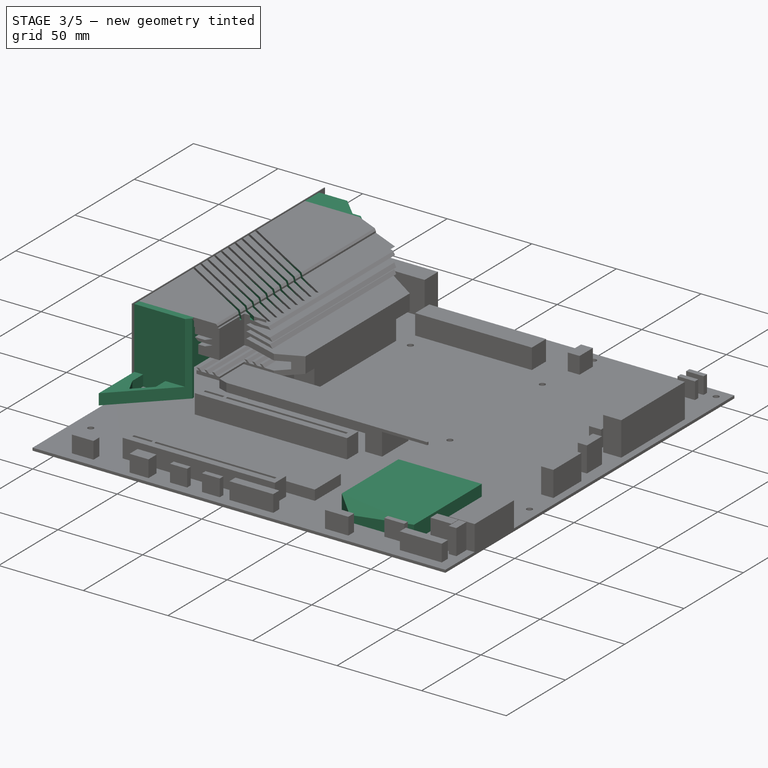
[diagram: stage 3 of 5 — iso view after this stage's code; geometry added in this stage tinted green]
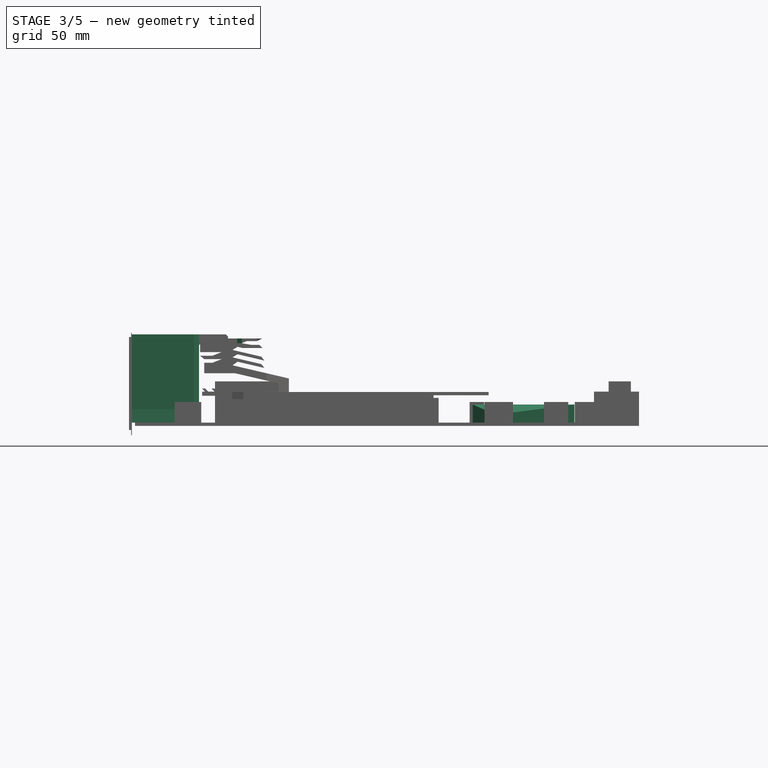
[diagram: stage 3 of 5 — front view after this stage's code; geometry added in this stage tinted green]
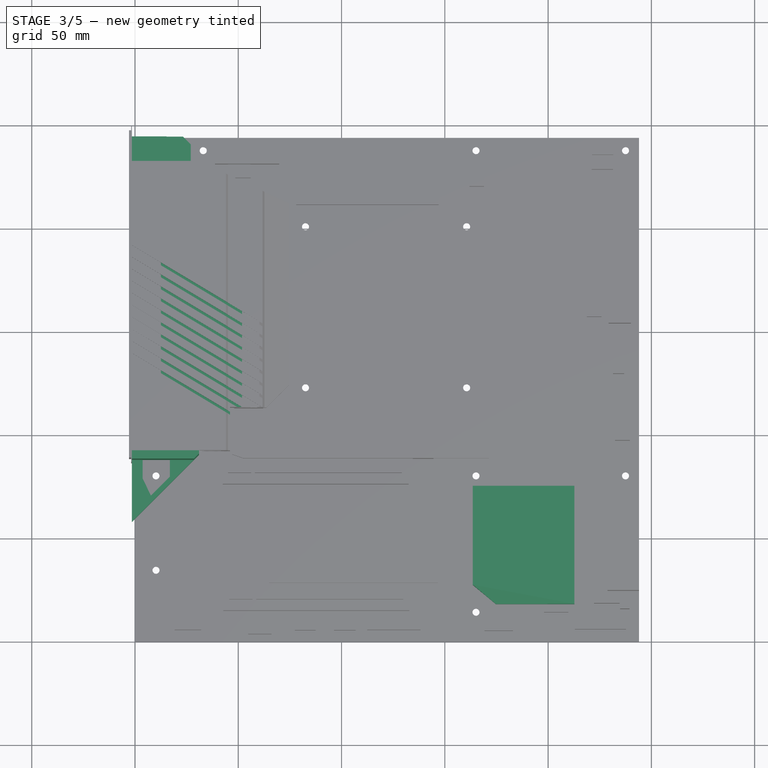
[diagram: stage 3 of 5 — top view after this stage's code; geometry added in this stage tinted green]
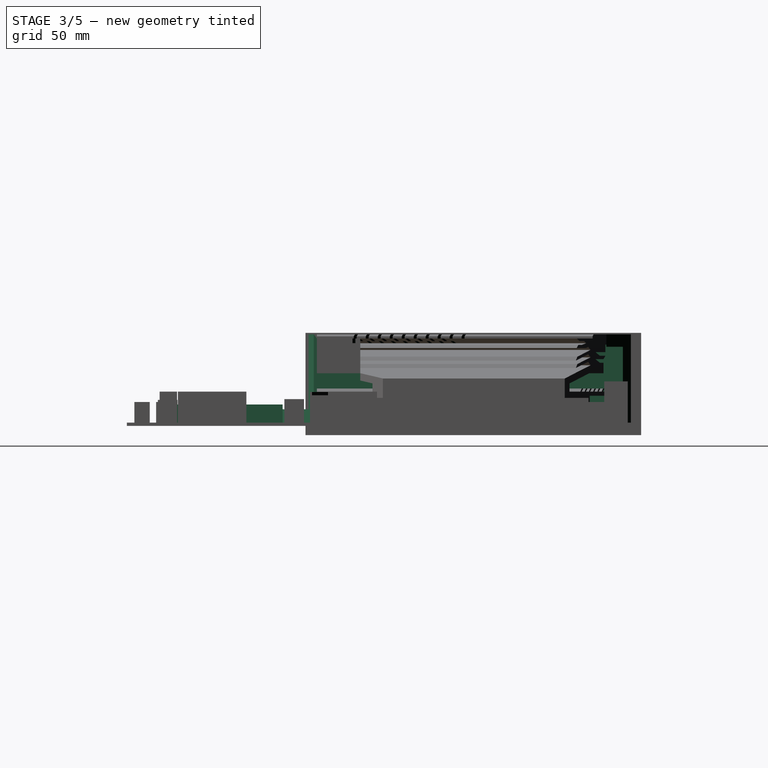
[diagram: stage 3 of 5 — right view after this stage's code; geometry added in this stage tinted green]
FEATURE [Sketcher::SketchObject] Sketch028
  FullyConstrained = false
  MapMode = 5
  Placement = pos=(0,0,1.6) rot=(0,0,1;0rad)
  sketch-geometry (5):
    g0: LineSegment StartX=163.5 StartY=75.4 StartZ=0 EndX=163.5 EndY=27.5 EndZ=0
    g1: LineSegment StartX=163.5 StartY=27.5 StartZ=0 EndX=174.7 EndY=18.2 EndZ=0
    g2: LineSegment StartX=174.7 StartY=18.2 StartZ=0 EndX=212.7 EndY=18.2 EndZ=0
    g3: LineSegment StartX=212.7 StartY=18.2 StartZ=0 EndX=212.7 EndY=75.4 EndZ=0
    g4: LineSegment StartX=212.7 StartY=75.4 StartZ=0 EndX=163.5 EndY=75.4 EndZ=0
  constraints (15):
    c: Vertical(g0)
    c: Coincident(g0,g1)
    c: Coincident(g1,g2)
    c: Horizontal(g2)
    c: Coincident(g2,g3)
    c: Vertical(g3)
    c: Coincident(g3,g4)
    c: Coincident(g4,g0)
    c: Horizontal(g4)
    c: DistanceY(g3,g3) = 57.2
    c: DistanceY(g-1,g1) = 18.2
    c: DistanceX(g4,g4) = 49.2
    c: DistanceY(g2,g0) = 9.3
    c: DistanceX(g2,g2) = 38
    c: DistanceX(g-1,g0) = 163.5
FEATURE [PartDesign::Pad] Pad019  label="南桥散热001"
  Direction = (0,0,1)
  Length = 8.75
  Length2 = 10
  Placement = pos=(0,0,1.6) rot=(0,0,1;0rad)
  Profile = -> Sketch028
  ReferenceAxis = -> Sketch028 [N_Axis]
  Type = 0
FEATURE [Sketcher::SketchObject] Sketch029
  FullyConstrained = false
  MapMode = 5
  Placement = pos=(0,0,10.35) rot=(0,0,1;0rad)
  sketch-geometry (3):
    g0: LineSegment StartX=163.5 StartY=27.5 StartZ=0 EndX=212.7 EndY=18.2 EndZ=0
    g1: LineSegment StartX=212.7 StartY=18.2 StartZ=0 EndX=163.5 EndY=18.2 EndZ=0
    g2: LineSegment StartX=163.5 StartY=27.5 StartZ=0 EndX=163.5 EndY=18.2 EndZ=0
  constraints (5):
    c: Coincident(g1,g0)
    c: Horizontal(g1)
    c: Coincident(g2,g0)
    c: Coincident(g2,g1)
    c: Vertical(g2)
FEATURE [PartDesign::Pocket] Pocket006  label="南桥散热倒角001"
  BaseFeature = -> Pad019
  Direction = (-15.5,0,-2)
  Length = 5
  Length2 = 5
  Placement = pos=(0,0,1.6) rot=(0,0,1;0rad)
  Profile = -> Sketch029
  ReferenceAxis = -> Sketch029 [N_Axis]
  Type = 0
  UseCustomVector = true
FEATURE [PartDesign::Body] Body002  label="南桥散热"
  Group = -> [Sketch028,Pad019,Sketch029,Pocket006,Sketch037,Pocket011,Chamfer002]
  Origin = -> Origin002
  Tip = -> Chamfer002
FEATURE [Sketcher::SketchObject] Sketch105
  FullyConstrained = true
  MapMode = 5
  Placement = pos=(0,0,0) rot=(-0.57735,0.57735,0.57735;4.18879rad)
  Support = -> [YZ_Plane017]
  sketch-geometry (11):
    g0: LineSegment StartX=-58 StartY=1.6 StartZ=0 EndX=-244 EndY=1.6 EndZ=0
    g1: LineSegment StartX=-244 StartY=1.6 StartZ=0 EndX=-244 EndY=44.35 EndZ=0
    g2: LineSegment StartX=-58 StartY=1.6 StartZ=0 EndX=-58 EndY=8.1 EndZ=0
    g3: LineSegment StartX=-58 StartY=8.1 StartZ=0 EndX=-88 EndY=8.1 EndZ=0
    g4: LineSegment StartX=-88 StartY=8.1 StartZ=0 EndX=-88 EndY=44.35 EndZ=0
    g5: LineSegment StartX=-244 StartY=44.35 StartZ=0 EndX=-232.15 EndY=44.35 EndZ=0
    g6: LineSegment StartX=-232.15 StartY=44.35 StartZ=0 EndX=-232.15 EndY=42.35 EndZ=0
    g7: LineSegment StartX=-232.15 StartY=42.35 StartZ=0 EndX=-92 EndY=42.35 EndZ=0
    g8: LineSegment StartX=-92 StartY=42.35 StartZ=0 EndX=-92 EndY=44.35 EndZ=0
    g9: LineSegment StartX=-92 StartY=44.35 StartZ=0 EndX=-88 EndY=44.35 EndZ=0
    g10: LineSegment StartX=-232.15 StartY=44.35 StartZ=0 EndX=-92 EndY=44.35 EndZ=0
  constraints (32):
    c: Coincident(g0,g1)
    c: Horizontal(g0)
    c: Vertical(g1)
    c: Coincident(g0,g2)
    c: Vertical(g2)
    c: Coincident(g2,g3)
    c: Horizontal(g3)
    c: Coincident(g3,g4)
    c: Vertical(g4)
    c: DistanceX(g0,g-1) = 244
    c: DistanceY(g0,g-1) = -1.6
    c: DistanceX(g1,g4) = 156
    c: DistanceY(g1,g1) = 42.75
    c: DistanceY(g2,g2) = 6.5
    c: DistanceX(g3,g3) = 30
    c: Coincident(g5,g1)
    c: Horizontal(g5)
    c: Coincident(g5,g6)
    c: Vertical(g6)
    c: Coincident(g6,g7)
    c: Horizontal(g7)
    c: Coincident(g7,g8)
    c: Vertical(g8)
    c: Coincident(g8,g9)
    c: Coincident(g9,g4)
    c: Horizontal(g9)
    c: Coincident(g10,g5)
    c: Coincident(g10,g8)
    c: Horizontal(g10)
    c: DistanceX(g5,g5) = 11.85
    c: DistanceX(g9,g9) = 4
    c: DistanceY(g6,g6) = 2
FEATURE [PartDesign::Pad] Pad065
  Direction = (-1,2e-16,-3e-16)
  Length = 1.5
  Length2 = 31
  Placement = pos=(0,0,0) rot=(0.57735,0.57735,0.57735;2.0944rad)
  Profile = -> Sketch105
  ReferenceAxis = -> Sketch105 [N_Axis]
  Type = 4
FEATURE [PartDesign::Plane] DatumPlane001
  AttachmentOffset = pos=(0,0,232.15) rot=(0,0,1;0rad)
  Length = 116.114
  MapMode = 2
  Placement = pos=(0,232.15,5.15e-14) rot=(0,0.707107,0.707107;3.14159rad)
  ResizeMode = 0
  Support = -> [XZ_Plane018]
  Width = 85.9637
FEATURE [Sketcher::SketchObject] Sketch106
  ExternalGeometry = -> [Pad065]
  FullyConstrained = false
  MapMode = 5
  Placement = pos=(-4e-16,7e-16,1.6) rot=(0.707107,0.707107,0;3.14159rad)
  Support = -> [Pad065]
  sketch-geometry (9):
    g0: LineSegment StartX=48.3024 StartY=-11.1976 StartZ=0 EndX=92 EndY=32.5 EndZ=0
    g1: LineSegment StartX=92 StartY=32.5 StartZ=0 EndX=92 EndY=11 EndZ=0
    g2: LineSegment StartX=92 StartY=11 StartZ=0 EndX=232.15 EndY=11 EndZ=0
    g3: LineSegment StartX=232.15 StartY=11 StartZ=0 EndX=232.15 EndY=27 EndZ=0
    g4: LineSegment StartX=232.15 StartY=27 StartZ=0 EndX=240.15 EndY=27 EndZ=0
    g5: LineSegment StartX=240.15 StartY=27 StartZ=0 EndX=258.816 EndY=8.3336 EndZ=0
    g6: LineSegment StartX=258.816 StartY=8.3336 StartZ=0 EndX=258.816 EndY=61.253 EndZ=0
    g7: LineSegment StartX=258.816 StartY=61.253 StartZ=0 EndX=48.3024 EndY=61.253 EndZ=0
    g8: LineSegment StartX=48.3024 StartY=61.253 StartZ=0 EndX=48.3024 EndY=-11.1976 EndZ=0
  constraints (24):
    c: Coincident(g1,g0)
    c: Vertical(g1)
    c: Coincident(g2,g1)
    c: Horizontal(g2)
    c: Coincident(g3,g2)
    c: Vertical(g3)
    c: Coincident(g3,g4)
    c: Horizontal(g4)
    c: Coincident(g4,g5)
    c: Coincident(g5,g6)
    c: Vertical(g6)
    c: Coincident(g6,g7)
    c: Horizontal(g7)
    c: Coincident(g7,g8)
    c: Coincident(g8,g0)
    c: Vertical(g8)
    c: Angle(g0,g8) = 0.785398
    c: PointOnObject(g-4,g0)
    c: PointOnObject(g-3,g1)
    c: DistanceY(g-3,g1) = 12.5
    c: PointOnObject(g2,g-5)
    c: Angle(g4,g5) = 2.35619
    c: DistanceX(g4,g4) = 8
    c: DistanceY(g-5,g3) = 28.5
FEATURE [PartDesign::Pocket] Pocket022  label="io板塑料装甲坎"
  BaseFeature = -> Pad065
  Direction = (-4e-16,6e-16,1)
  Length = 2
  Length2 = 5
  Placement = pos=(0,0,0) rot=(0.57735,0.57735,0.57735;2.0944rad)
  Profile = -> Sketch106
  ReferenceAxis = -> Sketch106 [N_Axis]
  Type = 1
FEATURE [Sketcher::SketchObject] Sketch107
  ExternalGeometry = -> [Pocket022]
  FullyConstrained = false
  MapMode = 5
  Placement = pos=(-1.24e-14,1.95e-14,44.35) rot=(0,0,-1;1.5708rad)
  Support = -> [Pocket022]
  sketch-geometry (3):
    g0: LineSegment StartX=-249.503 StartY=34.533 StartZ=0 EndX=-249.503 EndY=9.6471 EndZ=0
    g1: LineSegment StartX=-249.503 StartY=9.6471 StartZ=0 EndX=-224.617 EndY=34.533 EndZ=0
    g2: LineSegment StartX=-249.503 StartY=34.533 StartZ=0 EndX=-224.617 EndY=34.533 EndZ=0
  constraints (7):
    c: Vertical(g0)
    c: Coincident(g1,g0)
    c: Coincident(g2,g0)
    c: Coincident(g2,g1)
    c: Horizontal(g2)
    c: PointOnObject(g-3,g1)
    c: Angle(g2,g1) = 0.785398
FEATURE [PartDesign::Pocket] Pocket023  label="io板塑料斜坎"
  BaseFeature = -> Pocket022
  Direction = (7e-16,-7e-16,-1)
  Length = 6
  Length2 = 5
  Placement = pos=(0,0,0) rot=(0.57735,0.57735,0.57735;2.0944rad)
  Profile = -> Sketch107
  ReferenceAxis = -> Sketch107 [N_Axis]
  Type = 0
FEATURE [Sketcher::SketchObject] Sketch108
  ExternalGeometry = -> [Pocket023]
  FullyConstrained = false
  MapMode = 5
  Placement = pos=(-2.3e-15,3.6e-15,8.1) rot=(0,0,-1;1.5708rad)
  Support = -> [Pocket023]
  sketch-geometry (6):
    g0: LineSegment StartX=-88 StartY=16.9 StartZ=0 EndX=-88 EndY=3.7 EndZ=0
    g1: LineSegment StartX=-88 StartY=16.9 StartZ=0 EndX=-79.9355 EndY=16.9 EndZ=0
    g2: LineSegment StartX=-79.9355 StartY=16.9 StartZ=0 EndX=-70.6962 EndY=7.66066 EndZ=0
    g3: LineSegment StartX=-70.6962 StartY=7.66066 StartZ=0 EndX=-79 EndY=3.7 EndZ=0
    g4: LineSegment StartX=-79 StartY=3.7 StartZ=0 EndX=-88 EndY=3.7 EndZ=0
    g5: LineSegment StartX=-77.2202 StartY=14.1847 StartZ=0 EndX=-75.4524 EndY=15.9524 EndZ=0
  constraints (18):
    c: PointOnObject(g0,g-3)
    c: PointOnObject(g0,g-3)
    c: Coincident(g0,g1)
    c: Horizontal(g1)
    c: Coincident(g1,g2)
    c: Coincident(g2,g3)
    c: Coincident(g3,g4)
    c: Coincident(g4,g0)
    c: Horizontal(g4)
    c: DistanceY(g-4,g3) = 5.2
    c: DistanceY(g3,g1) = 13.2
    c: PointOnObject(g5,g2)
    c: PointOnObject(g5,g-5)
    c: Perpendicular(g2,g5)
    c: Distance(g5) = 2.5
    c: Parallel(g2,g-5)
    c: DistanceX(g0,g3) = 9
    c: Distance(g3) = 9.2
FEATURE [PartDesign::Pocket] Pocket024  label="io板塑料三角缝"
  BaseFeature = -> Pocket023
  Direction = (1.1e-15,-8e-16,-1)
  Length = 5
  Length2 = 5
  Placement = pos=(0,0,0) rot=(0.57735,0.57735,0.57735;2.0944rad)
  Profile = -> Sketch108
  ReferenceAxis = -> Sketch108 [N_Axis]
  Type = 1
FEATURE [Sketcher::SketchObject] Sketch111
  ExternalGeometry = -> [Pocket025]
  FullyConstrained = false
  MapMode = 5
  Placement = pos=(4e-15,232.15,44.35) rot=(0,0,1;0rad)
  Support = -> [Pocket025]
  sketch-geometry (7):
    g0: LineSegment StartX=-49.9825 StartY=-63.911 StartZ=0 EndX=101.425 EndY=-154.755 EndZ=0
    g1: LineSegment StartX=-60.3201 StartY=-59.1079 StartZ=0 EndX=95.6823 EndY=-152.709 EndZ=0
    g2: Circle CenterX=-60.3201 CenterY=-59.1079 CenterZ=0 NormalX=0 NormalY=0 NormalZ=1 AngleXU=0 Radius=1.2
    g3: LineSegment StartX=-49.9825 StartY=-63.911 StartZ=0 EndX=-60.3201 EndY=-59.1079 EndZ=0
    g4: LineSegment StartX=101.425 StartY=-154.755 StartZ=0 EndX=95.6823 EndY=-152.709 EndZ=0
    g5: GeomPoint X=-1.5 Y=-94.4 Z=0
    g6: GeomPoint X=46 Y=-122.9 Z=0
  constraints (15):
    c: Parallel(g0,g1)
    c: Coincident(g2,g1)
    c: Tangent(g2,g0)
    c: Coincident(g3,g0)
    c: Coincident(g3,g1)
    c: Coincident(g4,g0)
    c: Coincident(g4,g1)
    c: Radius(g2) = 1.2
    c: PointOnObject(g5,g-3)
    c: PointOnObject(g5,g1)
    c: PointOnObject(g6,g1)
    c: PointOnObject(g6,g-4)
    c: DistanceY(g-3,g5) = 45.75
    c: DistanceY(g-4,g-4) = 21
    c: DistanceY(g-4,g6) = 17.25
FEATURE [PartDesign::Pocket] Pocket026
  BaseFeature = -> Pocket025
  Direction = (-2e-16,2e-16,-1)
  Length = 4.25
  Length2 = 5
  Placement = pos=(0,232.15,5.2e-14) rot=(0,0.707107,0.707107;3.14159rad)
  Profile = -> Sketch111
  ReferenceAxis = -> Sketch111 [N_Axis]
  Type = 0
FEATURE [PartDesign::LinearPattern] LinearPattern
  BaseFeature = -> Pocket026
  Direction = -> Sketch111 [V_Axis]
  Length = 52.25
  Occurrences = 10
  Originals = -> [Pocket026]
  Placement = pos=(0,232.15,5.2e-14) rot=(0,0.707107,0.707107;3.14159rad)
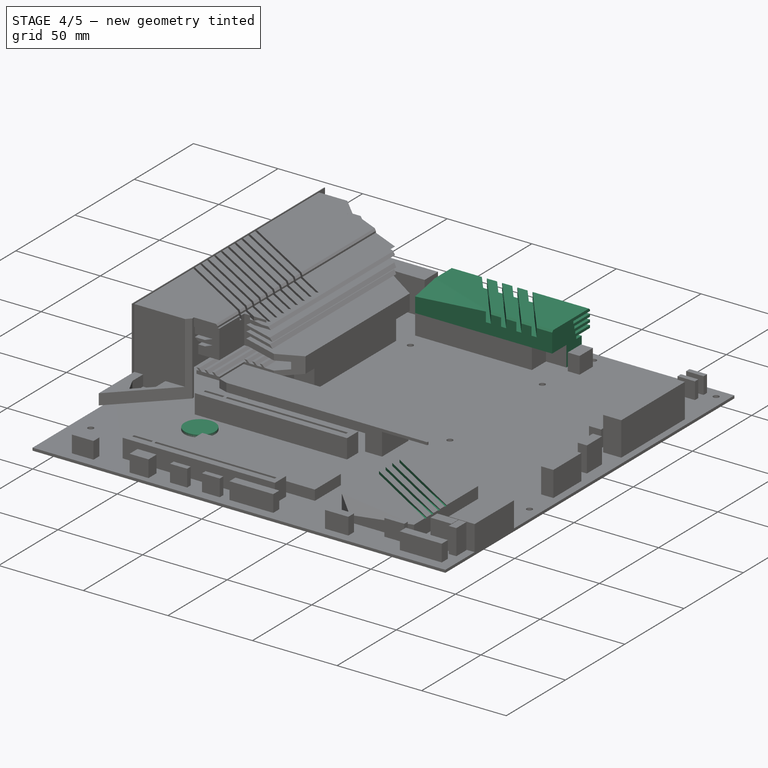
[diagram: stage 4 of 5 — iso view after this stage's code; geometry added in this stage tinted green]
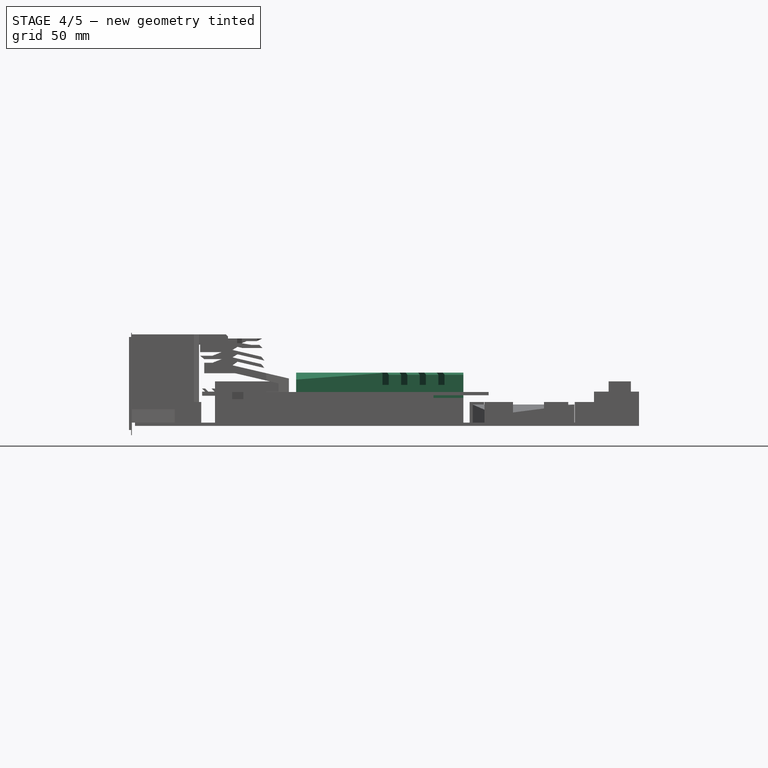
[diagram: stage 4 of 5 — front view after this stage's code; geometry added in this stage tinted green]
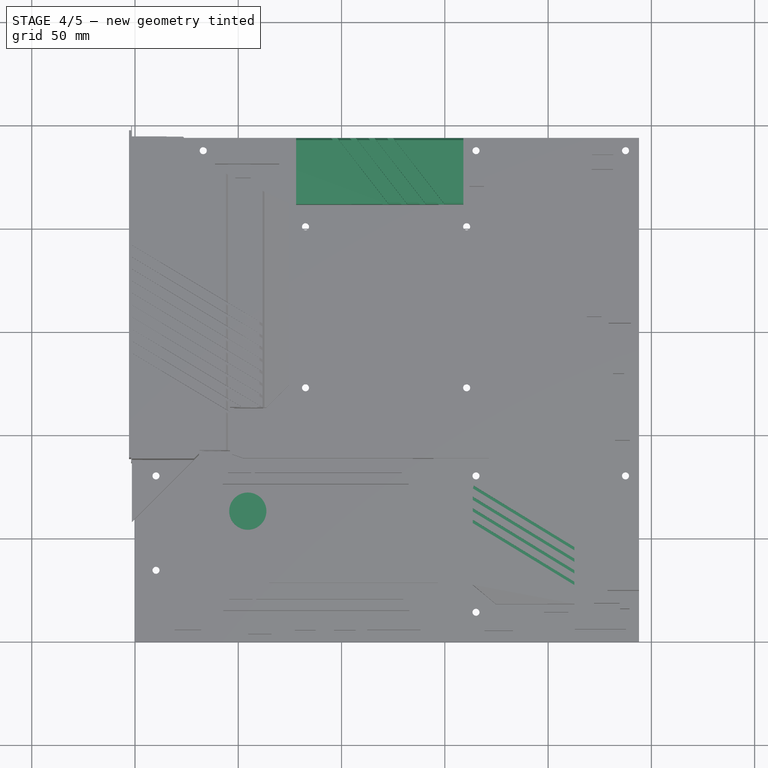
[diagram: stage 4 of 5 — top view after this stage's code; geometry added in this stage tinted green]
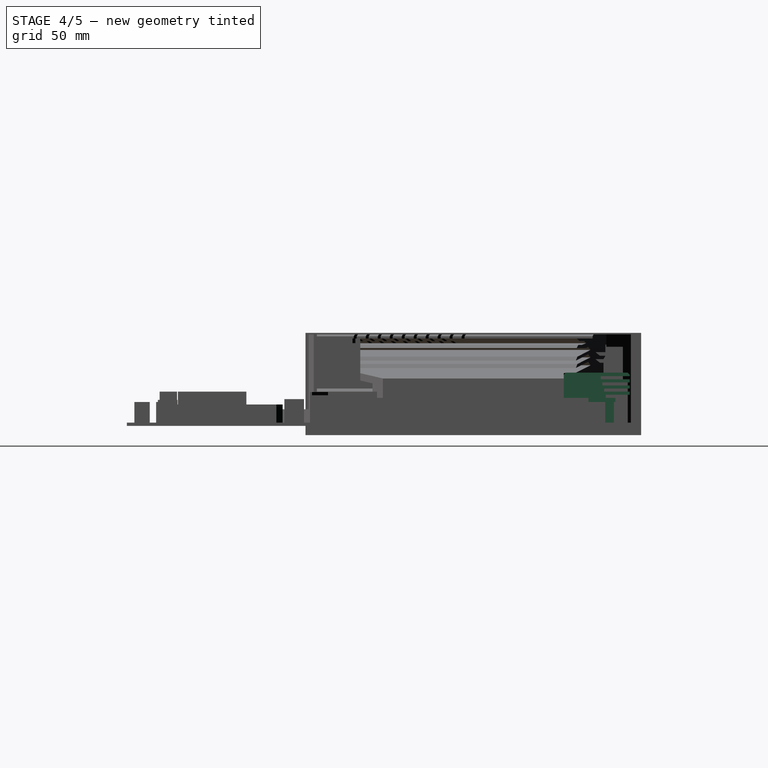
[diagram: stage 4 of 5 — right view after this stage's code; geometry added in this stage tinted green]
FEATURE [Sketcher::SketchObject] Sketch037
  FullyConstrained = false
  MapMode = 5
  Placement = pos=(212.7,0,0) rot=(0.57735,0.57735,0.57735;2.0944rad)
  sketch-geometry (20):
    g0: LineSegment StartX=27.35 StartY=35.8607 StartZ=0 EndX=28.95 EndY=35.8607 EndZ=0
    g1: LineSegment StartX=28.95 StartY=35.8607 StartZ=0 EndX=28.95 EndY=9.95 EndZ=0
    g2: LineSegment StartX=28.95 StartY=9.95 StartZ=0 EndX=27.35 EndY=9.95 EndZ=0
    g3: LineSegment StartX=27.35 StartY=9.95 StartZ=0 EndX=27.35 EndY=35.8607 EndZ=0
    g4: LineSegment StartX=32.95 StartY=31.8282 StartZ=0 EndX=34.55 EndY=31.8282 EndZ=0
    g5: LineSegment StartX=34.55 StartY=31.8282 StartZ=0 EndX=34.55 EndY=9.95 EndZ=0
    g6: LineSegment StartX=34.55 StartY=9.95 StartZ=0 EndX=32.95 EndY=9.95 EndZ=0
    g7: LineSegment StartX=32.95 StartY=9.95 StartZ=0 EndX=32.95 EndY=31.8282 EndZ=0
    g8: LineSegment StartX=38.55 StartY=37.7011 StartZ=0 EndX=40.15 EndY=37.7011 EndZ=0
    g9: LineSegment StartX=40.15 StartY=37.7011 StartZ=0 EndX=40.15 EndY=9.95 EndZ=0
    g10: LineSegment StartX=40.15 StartY=9.95 StartZ=0 EndX=38.55 EndY=9.95 EndZ=0
    g11: LineSegment StartX=38.55 StartY=9.95 StartZ=0 EndX=38.55 EndY=37.7011 EndZ=0
    g12: LineSegment StartX=44.15 StartY=29.4647 StartZ=0 EndX=45.75 EndY=29.4647 EndZ=0
    g13: LineSegment StartX=45.75 StartY=29.4647 StartZ=0 EndX=45.75 EndY=9.95 EndZ=0
    g14: LineSegment StartX=45.75 StartY=9.95 StartZ=0 EndX=44.15 EndY=9.95 EndZ=0
    g15: LineSegment StartX=44.15 StartY=9.95 StartZ=0 EndX=44.15 EndY=29.4647 EndZ=0
    g16: LineSegment StartX=28.95 StartY=9.95 StartZ=0 EndX=32.95 EndY=9.95 EndZ=0
    g17: LineSegment StartX=34.55 StartY=9.95 StartZ=0 EndX=38.55 EndY=9.95 EndZ=0
    g18: LineSegment StartX=40.15 StartY=9.95 StartZ=0 EndX=44.15 EndY=9.95 EndZ=0
    g19: GeomPoint X=28.95 Y=10.35 Z=0
  constraints (50):
    c: Coincident(g0,g1)
    c: Coincident(g1,g2)
    c: Coincident(g2,g3)
    c: Coincident(g3,g0)
    c: Horizontal(g0)
    c: Vertical(g1)
    c: Vertical(g3)
    c: Coincident(g4,g5)
    c: Coincident(g5,g6)
    c: Coincident(g6,g7)
    c: Coincident(g7,g4)
    c: Horizontal(g4)
    c: Horizontal(g6)
    c: Vertical(g5)
    c: Vertical(g7)
    c: Coincident(g8,g9)
    c: Coincident(g9,g10)
    c: Coincident(g10,g11)
    c: Coincident(g11,g8)
    c: Horizontal(g8)
    c: Horizontal(g10)
    c: Vertical(g9)
    c: Vertical(g11)
    c: Coincident(g12,g13)
    c: Coincident(g13,g14)
    c: Coincident(g14,g15)
    c: Coincident(g15,g12)
    c: Horizontal(g12)
    c: Horizontal(g14)
    c: Vertical(g13)
    c: Vertical(g15)
    c: Equal(g2,g6)
    c: Equal(g6,g10)
    c: Equal(g10,g14)
    c: Coincident(g16,g1)
    c: Coincident(g17,g5)
    c: Coincident(g17,g10)
    c: Coincident(g18,g9)
    c: Coincident(g18,g14)
    c: Horizontal(g16)
    c: Horizontal(g17)
    c: Horizontal(g18)
    c: Equal(g16,g17)
    c: Equal(g17,g18)
    c: PointOnObject(g19,g1)
    c: Coincident(g6,g16)
    c: Horizontal(g2)
    c: DistanceY(g1,g19) = 0.4
    c: DistanceX(g0,g0) = 1.6
    c: DistanceX(g16,g16) = 4
FEATURE [PartDesign::Pocket] Pocket011  label="南桥散热坎001"
  BaseFeature = -> Pocket006
  Direction = (-49.2,30,-3)
  Length = 50
  Length2 = 5
  Placement = pos=(0,0,1.6) rot=(0,0,1;0rad)
  Profile = -> Sketch037
  ReferenceAxis = -> Sketch037 [N_Axis]
  Type = 0
  UseCustomVector = true
FEATURE [Sketcher::SketchObject] Sketch051
  FullyConstrained = true
  MapMode = 5
  Placement = pos=(0,0,1.6) rot=(0,0,1;0rad)
  sketch-geometry (4):
    g0: LineSegment StartX=78 StartY=243.5 StartZ=0 EndX=159 EndY=243.5 EndZ=0
    g1: LineSegment StartX=159 StartY=243.5 StartZ=0 EndX=159 EndY=211.5 EndZ=0
    g2: LineSegment StartX=159 StartY=211.5 StartZ=0 EndX=78 EndY=211.5 EndZ=0
    g3: LineSegment StartX=78 StartY=211.5 StartZ=0 EndX=78 EndY=243.5 EndZ=0
  constraints (12):
    c: Coincident(g0,g1)
    c: Coincident(g1,g2)
    c: Coincident(g2,g3)
    c: Coincident(g3,g0)
    c: Horizontal(g0)
    c: Horizontal(g2)
    c: Vertical(g1)
    c: Vertical(g3)
    c: DistanceY(g1,g1) = 32
    c: DistanceX(g2,g2) = 81
    c: DistanceY(g-1,g0) = 243.5
    c: DistanceX(g-1,g1) = 159
FEATURE [PartDesign::Pad] Pad030  label="mos散热001"
  Direction = (0,0,1)
  Length = 24.2
  Length2 = 10
  Placement = pos=(0,0,1.6) rot=(0,0,1;0rad)
  Profile = -> Sketch051
  ReferenceAxis = -> Sketch051 [N_Axis]
  Type = 0
FEATURE [Sketcher::SketchObject] Sketch052
  FullyConstrained = false
  MapMode = 5
  Placement = pos=(0,0,25.8) rot=(0,0,1;0rad)
  sketch-geometry (28):
    g0: LineSegment StartX=107.402 StartY=266.161 StartZ=0 EndX=156.954 EndY=202.352 EndZ=0
    g1: GeomPoint X=149.85 Y=211.5 Z=0
    g2: GeomPoint X=125 Y=243.5 Z=0
    g3: LineSegment StartX=101.342 StartY=262.376 StartZ=0 EndX=147.011 EndY=203.566 EndZ=0
    g4: LineSegment StartX=96.245 StartY=257.349 StartZ=0 EndX=138.853 EndY=202.481 EndZ=0
    g5: LineSegment StartX=93.2294 StartY=249.643 StartZ=0 EndX=128.887 EndY=203.726 EndZ=0
    g6: LineSegment StartX=93.245 StartY=257.349 StartZ=0 EndX=135.853 EndY=202.481 EndZ=0
    g7: LineSegment StartX=98.3416 StartY=262.376 StartZ=0 EndX=144.011 EndY=203.566 EndZ=0
    g8: LineSegment StartX=104.402 StartY=266.161 StartZ=0 EndX=153.954 EndY=202.352 EndZ=0
    g9: GeomPoint X=146.85 Y=211.5 Z=0
    g10: GeomPoint X=122 Y=243.5 Z=0
    g11: LineSegment StartX=90.2294 StartY=249.643 StartZ=0 EndX=125.887 EndY=203.726 EndZ=0
    g12: LineSegment StartX=127.934 StartY=239.722 StartZ=0 EndX=126.062 EndY=238.269 EndZ=0
    g13: LineSegment StartX=128.43 StartY=235.219 StartZ=0 EndX=124.688 EndY=232.313 EndZ=0
    g14: LineSegment StartX=123.777 StartY=233.485 StartZ=0 EndX=121.906 EndY=232.032 EndZ=0
    g15: LineSegment StartX=121.378 StartY=232.712 StartZ=0 EndX=117.635 EndY=229.805 EndZ=0
    g16: LineSegment StartX=119.073 StartY=227.953 StartZ=0 EndX=117.202 EndY=226.5 EndZ=0
    g17: LineSegment StartX=116.634 StartY=227.23 StartZ=0 EndX=112.891 EndY=224.324 EndZ=0
    g18: LineSegment StartX=115.399 StartY=221.095 StartZ=0 EndX=113.527 EndY=219.642 EndZ=0
    g19: GeomPoint X=116 Y=243.5 Z=0
    g20: LineSegment StartX=90.2294 StartY=249.643 StartZ=0 EndX=93.2294 EndY=249.643 EndZ=0
    g21: LineSegment StartX=93.245 StartY=257.349 StartZ=0 EndX=96.245 EndY=257.349 EndZ=0
    g22: LineSegment StartX=98.3416 StartY=262.376 StartZ=0 EndX=101.342 EndY=262.376 EndZ=0
    g23: LineSegment StartX=104.402 StartY=266.161 StartZ=0 EndX=107.402 EndY=266.161 EndZ=0
    g24: LineSegment StartX=125.887 StartY=203.726 StartZ=0 EndX=128.887 EndY=203.726 EndZ=0
    g25: LineSegment StartX=135.853 StartY=202.481 StartZ=0 EndX=138.853 EndY=202.481 EndZ=0
    g26: LineSegment StartX=144.011 StartY=203.566 StartZ=0 EndX=147.011 EndY=203.566 EndZ=0
    g27: LineSegment StartX=153.954 StartY=202.352 StartZ=0 EndX=156.954 EndY=202.352 EndZ=0
  constraints (64):
    c: PointOnObject(g1,g0)
    c: PointOnObject(g2,g0)
    c: PointOnObject(g9,g8)
    c: PointOnObject(g10,g8)
    c: Parallel(g11,g5)
    c: Parallel(g5,g6)
    c: Parallel(g6,g4)
    c: Parallel(g4,g7)
    c: Parallel(g7,g3)
    c: Parallel(g3,g8)
    c: Parallel(g8,g0)
    c: DistanceX(g9,g1) = 3
    c: PointOnObject(g12,g0)
    c: PointOnObject(g12,g8)
    c: PointOnObject(g13,g8)
    c: PointOnObject(g13,g3)
    c: PointOnObject(g14,g7)
    c: PointOnObject(g15,g7)
    c: PointOnObject(g15,g4)
    c: PointOnObject(g16,g4)
    c: PointOnObject(g16,g6)
    c: PointOnObject(g17,g6)
    c: PointOnObject(g17,g5)
    c: PointOnObject(g18,g5)
    c: PointOnObject(g18,g11)
    c: Parallel(g18,g17)
    c: Parallel(g17,g16)
    c: Parallel(g16,g15)
    c: Parallel(g15,g14)
    c: Parallel(g14,g13)
    c: Parallel(g13,g12)
    c: Perpendicular(g4,g16)
    c: Equal(g12,g14)
    c: Equal(g14,g16)
    c: Equal(g16,g18)
    c: Equal(g13,g15)
    c: Equal(g15,g17)
    c: PointOnObject(g19,g3)
    c: DistanceX(g19,g10) = 6
    c: PointOnObject(g14,g3)
    c: Coincident(g20,g11)
    c: Coincident(g20,g5)
    c: Coincident(g21,g6)
    c: Coincident(g21,g4)
    c: Coincident(g22,g7)
    c: Coincident(g22,g3)
    c: Coincident(g23,g8)
    c: Coincident(g23,g0)
    c: Coincident(g24,g11)
    c: Coincident(g24,g5)
    c: Coincident(g25,g6)
    c: Coincident(g25,g4)
    c: Coincident(g26,g7)
    c: Coincident(g26,g3)
    c: Coincident(g27,g8)
    c: Coincident(g27,g0)
    c: Horizontal(g24)
    c: Horizontal(g25)
    c: Horizontal(g26)
    c: Horizontal(g27)
    c: Horizontal(g20)
    c: Horizontal(g21)
    c: Horizontal(g22)
    c: Horizontal(g23)
FEATURE [PartDesign::Pocket] Pocket014  label="mos散热坎001"
  BaseFeature = -> Pad030
  Direction = (0,0,-1)
  Length = 5.9
  Length2 = 5
  Placement = pos=(0,0,1.6) rot=(0,0,1;0rad)
  Profile = -> Sketch052
  ReferenceAxis = -> Sketch052 [N_Axis]
  Type = 0
FEATURE [Sketcher::SketchObject] Sketch053
  ExternalGeometry = -> [Pocket014]
  FullyConstrained = false
  MapMode = 5
  Placement = pos=(78,0,1.6) rot=(0.57735,-0.57735,-0.57735;2.0944rad)
  Support = -> [Pocket014]
  sketch-geometry (22):
    g0: LineSegment StartX=-230.25 StartY=18 StartZ=0 EndX=-247.247 EndY=18 EndZ=0
    g1: LineSegment StartX=-247.247 StartY=18 StartZ=0 EndX=-247.247 EndY=19.5 EndZ=0
    g2: LineSegment StartX=-247.247 StartY=19.5 StartZ=0 EndX=-230.25 EndY=19.5 EndZ=0
    g3: LineSegment StartX=-230.25 StartY=19.5 StartZ=0 EndX=-230.25 EndY=18 EndZ=0
    g4: LineSegment StartX=-229.45 StartY=21 StartZ=0 EndX=-247.596 EndY=21 EndZ=0
    g5: LineSegment StartX=-247.596 StartY=21 StartZ=0 EndX=-247.596 EndY=22.5 EndZ=0
    g6: LineSegment StartX=-247.596 StartY=22.5 StartZ=0 EndX=-229.45 EndY=22.5 EndZ=0
    g7: LineSegment StartX=-229.45 StartY=22.5 StartZ=0 EndX=-229.45 EndY=21 EndZ=0
    g8: LineSegment StartX=-231.05 StartY=15 StartZ=0 EndX=-247.702 EndY=15 EndZ=0
    g9: LineSegment StartX=-247.702 StartY=15 StartZ=0 EndX=-247.702 EndY=16.5 EndZ=0
    g10: LineSegment StartX=-247.702 StartY=16.5 StartZ=0 EndX=-231.05 EndY=16.5 EndZ=0
    g11: LineSegment StartX=-231.05 StartY=16.5 StartZ=0 EndX=-231.05 EndY=15 EndZ=0
    g12: LineSegment StartX=-231.85 StartY=13.5 StartZ=0 EndX=-231.85 EndY=12 EndZ=0
    g13: LineSegment StartX=-231.85 StartY=12 StartZ=0 EndX=-236.5 EndY=12 EndZ=0
    g14: LineSegment StartX=-236.5 StartY=12 StartZ=0 EndX=-236.5 EndY=-1.78974 EndZ=0
    g15: LineSegment StartX=-236.5 StartY=-1.78974 StartZ=0 EndX=-248.684 EndY=-1.78974 EndZ=0
    g16: LineSegment StartX=-248.684 StartY=-1.78974 StartZ=0 EndX=-248.684 EndY=13.5 EndZ=0
    g17: LineSegment StartX=-231.85 StartY=13.5 StartZ=0 EndX=-248.684 EndY=13.5 EndZ=0
    g18: LineSegment StartX=-223.5 StartY=12 StartZ=0 EndX=-206.812 EndY=12 EndZ=0
    g19: LineSegment StartX=-206.812 StartY=12 StartZ=0 EndX=-206.812 EndY=-8.97211 EndZ=0
    g20: LineSegment StartX=-206.812 StartY=-8.97211 StartZ=0 EndX=-223.5 EndY=-8.97211 EndZ=0
    g21: LineSegment StartX=-223.5 StartY=-8.97211 StartZ=0 EndX=-223.5 EndY=12 EndZ=0
  constraints (59):
    c: Coincident(g0,g1)
    c: Coincident(g1,g2)
    c: Coincident(g2,g3)
    c: Coincident(g3,g0)
    c: Horizontal(g0)
    c: Horizontal(g2)
    c: Vertical(g1)
    c: Vertical(g3)
    c: Coincident(g4,g5)
    c: Coincident(g5,g6)
    c: Coincident(g6,g7)
    c: Coincident(g7,g4)
    c: Horizontal(g4)
    c: Horizontal(g6)
    c: Vertical(g5)
    c: Vertical(g7)
    c: Coincident(g8,g9)
    c: Coincident(g9,g10)
    c: Coincident(g10,g11)
    c: Coincident(g11,g8)
    c: Horizontal(g8)
    c: Horizontal(g10)
    c: Vertical(g9)
    c: Vertical(g11)
    c: DistanceY(g11,g11) = 1.5
    c: DistanceY(g0,g10) = -1.5
    c: DistanceY(g3,g3) = 1.5
    c: DistanceY(g4,g2) = -1.5
    c: DistanceY(g7,g7) = 1.5
    c: Coincident(g12,g13)
    c: Horizontal(g13)
    c: Vertical(g12)
    c: DistanceX(g13,g13) = 4.65
    c: DistanceX(g8,g12) = -0.8
    c: DistanceX(g0,g10) = -0.8
    c: DistanceX(g2,g4) = 0.8
    c: Coincident(g14,g13)
    c: Vertical(g14)
    c: Coincident(g15,g14)
    c: Horizontal(g15)
    c: Vertical(g16)
    c: Coincident(g15,g16)
    c: DistanceX(g6,g-1) = 229.45
    c: Coincident(g17,g12)
    c: Coincident(g17,g16)
    c: Horizontal(g17)
    c: DistanceY(g12,g8) = 1.5
    c: DistanceY(g12,g12) = 1.5
    c: DistanceY(g6,g-3) = 1.7
    c: Coincident(g18,g19)
    c: Coincident(g19,g20)
    c: Coincident(g20,g21)
    c: Coincident(g21,g18)
    c: Horizontal(g18)
    c: Horizontal(g20)
    c: Vertical(g19)
    c: Vertical(g21)
    c: DistanceY(g-4,g18) = 12
    c: DistanceX(g18,g-4) = 12
FEATURE [PartDesign::Pocket] Pocket015  label="mos散热道001"
  BaseFeature = -> Pocket014
  Direction = (1,0,0)
  Length = 5
  Length2 = 5
  Placement = pos=(0,0,1.6) rot=(0,0,1;0rad)
  Profile = -> Sketch053
  ReferenceAxis = -> Sketch053 [N_Axis]
  Type = 1
FEATURE [PartDesign::Body] Body011  label="电池槽"
  Group = -> [Sketch095,Pad063,Sketch096,Pocket019,DatumPlane,Sketch097,Pocket020,Sketch098,Pocket021]
  Origin = -> Origin012
  Placement = pos=(0,0,20) rot=(0,0,1;0rad)
  Tip = -> Pocket021
FEATURE [Sketcher::SketchObject] Sketch099
  FullyConstrained = false
  MapMode = 5
  Placement = pos=(0,0,1.6) rot=(0,0,1;0rad)
  sketch-geometry (1):
    g0: Circle CenterX=54.6048 CenterY=63.241 CenterZ=0 NormalX=0 NormalY=0 NormalZ=1 AngleXU=0 Radius=9
  constraints (1):
    c: Diameter(g0) = 18
FEATURE [PartDesign::Pad] Pad064
  Direction = (0,0,1)
  Length = 1.5
  Length2 = 10
  Placement = pos=(0,0,1.6) rot=(0,0,1;0rad)
  Profile = -> Sketch099
  ReferenceAxis = -> Sketch099 [N_Axis]
  Type = 0
FEATURE [Sketcher::SketchObject] Sketch103
  ExternalGeometry = -> [Pad048]
  FullyConstrained = true
  MapMode = 5
  Placement = pos=(0,0,13) rot=(0,0,1;0rad)
  Support = -> [Pad048]
  sketch-geometry (9):
    g0: LineSegment StartX=45 StartY=81.75 StartZ=0 EndX=56.2 EndY=81.75 EndZ=0
    g1: LineSegment StartX=56.2 StartY=81.75 StartZ=0 EndX=56.2 EndY=80.15 EndZ=0
    g2: LineSegment StartX=56.2 StartY=80.15 StartZ=0 EndX=45 EndY=80.15 EndZ=0
    g3: LineSegment StartX=45 StartY=80.15 StartZ=0 EndX=45 EndY=81.75 EndZ=0
    g4: LineSegment StartX=58.05 StartY=81.75 StartZ=0 EndX=129.2 EndY=81.75 EndZ=0
    g5: LineSegment StartX=129.2 StartY=81.75 StartZ=0 EndX=129.2 EndY=80.15 EndZ=0
    g6: LineSegment StartX=129.2 StartY=80.15 StartZ=0 EndX=58.05 EndY=80.15 EndZ=0
    g7: LineSegment StartX=58.05 StartY=80.15 StartZ=0 EndX=58.05 EndY=81.75 EndZ=0
    g8: LineSegment StartX=56.2 StartY=81.75 StartZ=0 EndX=58.05 EndY=81.75 EndZ=0
  constraints (27):
    c: Coincident(g0,g1)
    c: Coincident(g1,g2)
    c: Coincident(g2,g3)
    c: Coincident(g3,g0)
    c: Horizontal(g0)
    c: Horizontal(g2)
    c: Vertical(g1)
    c: Vertical(g3)
    c: Coincident(g4,g5)
    c: Coincident(g5,g6)
    c: Coincident(g6,g7)
    c: Coincident(g7,g4)
    c: Horizontal(g4)
    c: Horizontal(g6)
    c: Vertical(g5)
    c: Vertical(g7)
    c: Equal(g7,g1)
    c: Coincident(g8,g0)
    c: Horizontal(g8)
    c: Coincident(g8,g4)
    c: DistanceX(g-3,g0) = 2.5
    c: DistanceX(g-1,g2) = 45
    c: DistanceX(g2,g2) = 11.2
    c: DistanceX(g8,g8) = 1.85
    c: DistanceX(g4,g4) = 71.15
    c: DistanceY(g7,g7) = 1.6
    c: DistanceY(g0,g-3) = 4
FEATURE [Sketcher::SketchObject] Sketch104
  ExternalGeometry = -> [Pocket015]
  FullyConstrained = false
  MapMode = 5
  Placement = pos=(0,0,25.8) rot=(0,0,1;0rad)
  Support = -> [Pocket015]
  sketch-geometry (5):
    g0: LineSegment StartX=73.0654 StartY=230.095 StartZ=0 EndX=130.059 EndY=208.786 EndZ=0
    g1: LineSegment StartX=130.059 StartY=208.786 StartZ=0 EndX=73.0654 EndY=208.786 EndZ=0
    g2: LineSegment StartX=73.0654 StartY=208.786 StartZ=0 EndX=73.0654 EndY=230.095 EndZ=0
    g3: GeomPoint X=78 Y=228.25 Z=0
    g4: GeomPoint X=122.8 Y=211.5 Z=0
  constraints (11):
    c: Coincident(g0,g1)
    c: Horizontal(g1)
    c: Coincident(g1,g2)
    c: Coincident(g2,g0)
    c: Vertical(g2)
    c: PointOnObject(g3,g0)
    c: PointOnObject(g4,g0)
    c: DistanceY(g3,g-4) = 15.25
    c: PointOnObject(g3,g-4)
    c: PointOnObject(g4,g-3)
    c: DistanceX(g4,g-3) = -2.95
FEATURE [PartDesign::Pocket] Pocket
  BaseFeature = -> Pocket015
  Direction = (0,-2,-0.4)
  Length = 5
  Length2 = 5
  Placement = pos=(0,0,1.6) rot=(0,0,1;0rad)
  Profile = -> Sketch104
  ReferenceAxis = -> Sketch104 [N_Axis]
  Type = 0
  UseCustomVector = true
FEATURE [PartDesign::Chamfer] Chamfer
  Angle = 45
  Base = -> Pocket [Edge60,Edge64,Edge68,Edge72]
  BaseFeature = -> Pocket
  ChamferType = 0
  FlipDirection = false
  Placement = pos=(0,0,1.6) rot=(0,0,1;0rad)
  Size = 1
  Size2 = 1
  SupportTransform = false
  UseAllEdges = false
FEATURE [PartDesign::Chamfer] Chamfer001
  Angle = 45
  Base = -> Chamfer [Edge47,Edge197,Edge192,Edge182,Edge187]
  BaseFeature = -> Chamfer
  ChamferType = 0
  FlipDirection = false
  Placement = pos=(0,0,1.6) rot=(0,0,1;0rad)
  Size = 1
  Size2 = 1
  SupportTransform = false
  UseAllEdges = false
FEATURE [PartDesign::Body] Body003  label="mos散热"
  Group = -> [Sketch051,Pad030,Sketch052,Pocket014,Sketch053,Pocket015,Sketch104,Pocket,Chamfer,Chamfer001]
  Origin = -> Origin003
  Tip = -> Chamfer001
FEATURE [PartDesign::Chamfer] Chamfer002
  Angle = 45
  Base = -> Pocket011 [Edge59]
  BaseFeature = -> Pocket011
  ChamferType = 0
  FlipDirection = false
  Placement = pos=(0,0,1.6) rot=(0,0,1;0rad)
  Size = 3
  Size2 = 1
  SupportTransform = false
  UseAllEdges = false
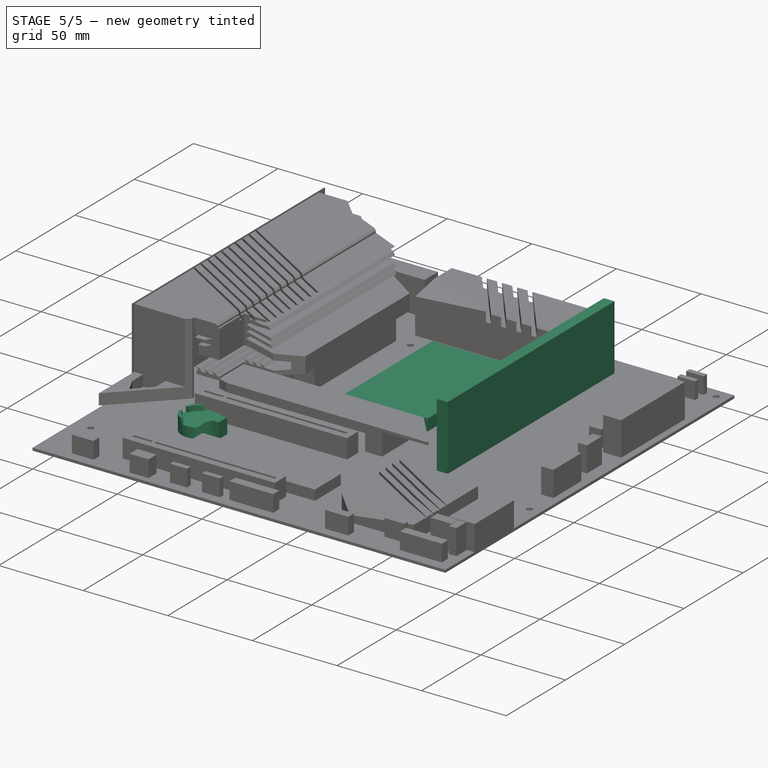
[diagram: stage 5 of 5 — iso view after this stage's code; geometry added in this stage tinted green]
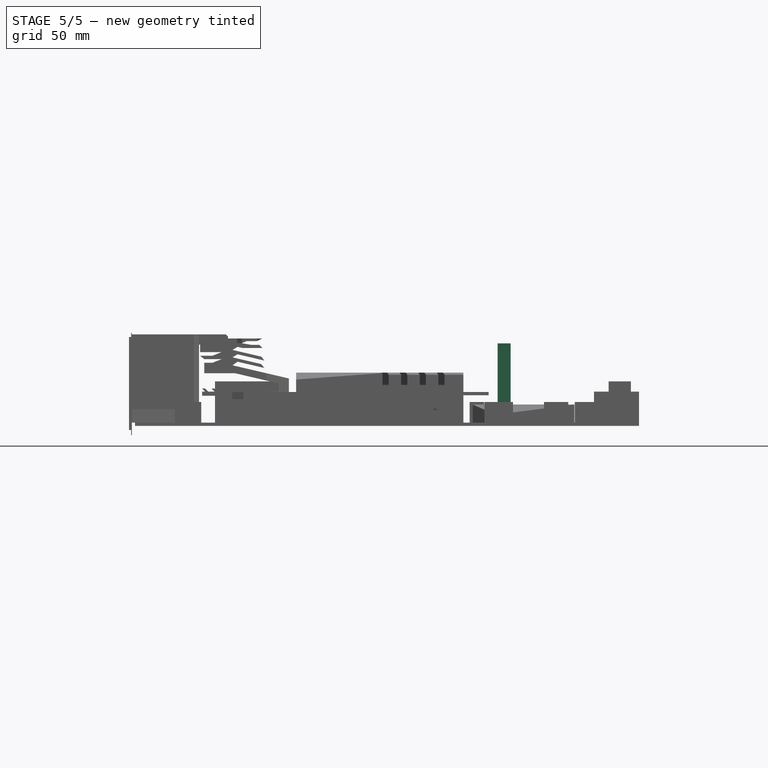
[diagram: stage 5 of 5 — front view after this stage's code; geometry added in this stage tinted green]
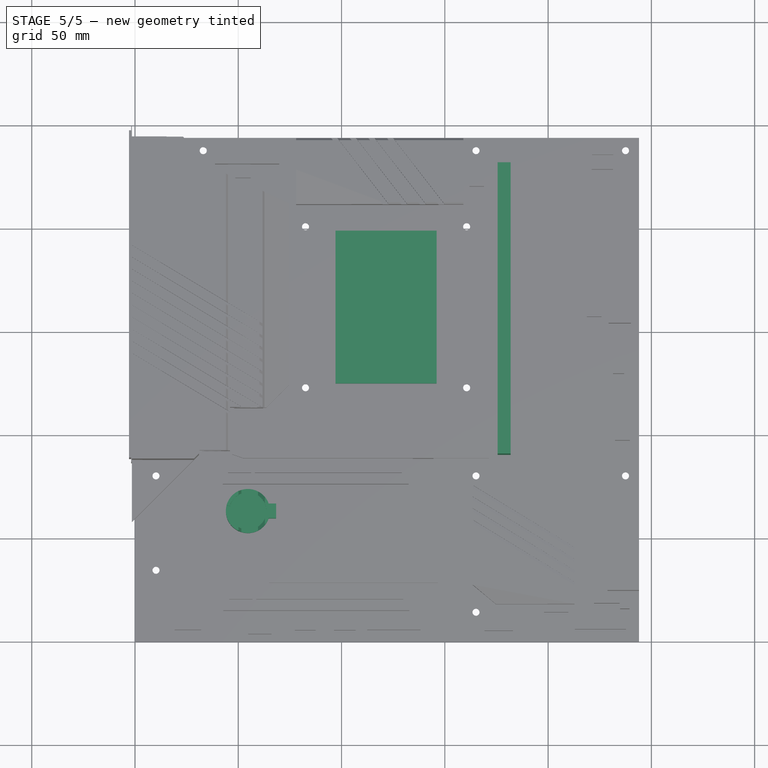
[diagram: stage 5 of 5 — top view after this stage's code; geometry added in this stage tinted green]
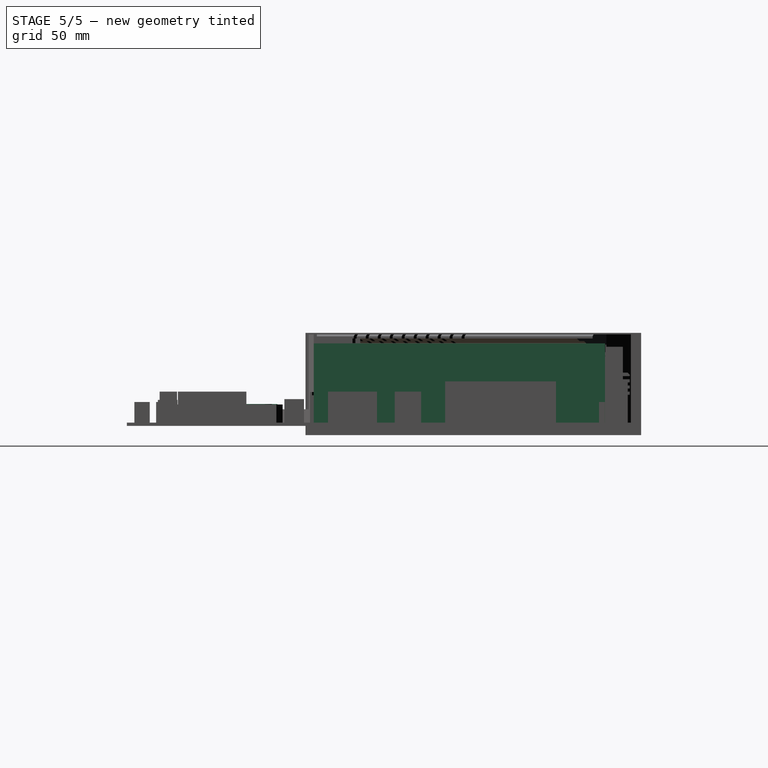
[diagram: stage 5 of 5 — right view after this stage's code; geometry added in this stage tinted green]
FEATURE [Sketcher::SketchObject] Sketch067
  FullyConstrained = true
  MapMode = 5
  Placement = pos=(0,0,1.6) rot=(0,0,1;0rad)
  sketch-geometry (4):
    g0: LineSegment StartX=97.06 StartY=199 StartZ=0 EndX=146.06 EndY=199 EndZ=0
    g1: LineSegment StartX=146.06 StartY=199 StartZ=0 EndX=146.06 EndY=125 EndZ=0
    g2: LineSegment StartX=146.06 StartY=125 StartZ=0 EndX=97.06 EndY=125 EndZ=0
    g3: LineSegment StartX=97.06 StartY=125 StartZ=0 EndX=97.06 EndY=199 EndZ=0
  constraints (12):
    c: Coincident(g0,g1)
    c: Coincident(g1,g2)
    c: Coincident(g2,g3)
    c: Coincident(g3,g0)
    c: Horizontal(g0)
    c: Horizontal(g2)
    c: Vertical(g1)
    c: Vertical(g3)
    c: DistanceX(g0,g0) = 49
    c: DistanceY(g3,g3) = 74
    c: DistanceY(g-1,g2) = 125
    c: DistanceX(g-1,g2) = 97.06
FEATURE [PartDesign::Pad] Pad042  label="CPU顶盖001"
  Direction = (0,0,1)
  Length = 6.9
  Length2 = 10
  Placement = pos=(0,0,1.6) rot=(0,0,1;0rad)
  Profile = -> Sketch067
  ReferenceAxis = -> Sketch067 [N_Axis]
  Type = 0
FEATURE [Sketcher::SketchObject] Sketch079
  FullyConstrained = true
  MapMode = 5
  Support = -> [XY_Plane006]
  sketch-geometry (4):
    g0: LineSegment StartX=175.56 StartY=231.51 StartZ=0 EndX=181.86 EndY=231.51 EndZ=0
    g1: LineSegment StartX=181.86 StartY=231.51 StartZ=0 EndX=181.86 EndY=90.51 EndZ=0
    g2: LineSegment StartX=181.86 StartY=90.51 StartZ=0 EndX=175.56 EndY=90.51 EndZ=0
    g3: LineSegment StartX=175.56 StartY=90.51 StartZ=0 EndX=175.56 EndY=231.51 EndZ=0
  constraints (12):
    c: Coincident(g0,g1)
    c: Coincident(g1,g2)
    c: Coincident(g2,g3)
    c: Coincident(g3,g0)
    c: Horizontal(g0)
    c: Horizontal(g2)
    c: Vertical(g1)
    c: Vertical(g3)
    c: DistanceY(g-1,g2) = 90.51
    c: DistanceX(g-1,g2) = 175.56
    c: DistanceX(g0,g0) = 6.3
    c: DistanceY(g1,g1) = 141
FEATURE [PartDesign::Pad] Pad049
  Direction = (0,0,1)
  Length = 40
  Length2 = 10
  Profile = -> Sketch079
  ReferenceAxis = -> Sketch079 [N_Axis]
  Type = 0
FEATURE [PartDesign::Body] Body006  label="内存条001"
  Group = -> [Sketch079,Pad049]
  Origin = -> Origin006
  Placement = pos=(0,0,20) rot=(0,0,1;0rad)
  Tip = -> Pad049
FEATURE [Sketcher::SketchObject] Sketch080
  FullyConstrained = true
  MapMode = 5
  Support = -> [XY_Plane007]
  sketch-geometry (4):
    g0: LineSegment StartX=175.56 StartY=231.51 StartZ=0 EndX=181.86 EndY=231.51 EndZ=0
    g1: LineSegment StartX=181.86 StartY=231.51 StartZ=0 EndX=181.86 EndY=90.51 EndZ=0
    g2: LineSegment StartX=181.86 StartY=90.51 StartZ=0 EndX=175.56 EndY=90.51 EndZ=0
    g3: LineSegment StartX=175.56 StartY=90.51 StartZ=0 EndX=175.56 EndY=231.51 EndZ=0
  constraints (12):
    c: Coincident(g0,g1)
    c: Coincident(g1,g2)
    c: Coincident(g2,g3)
    c: Coincident(g3,g0)
    c: Horizontal(g0)
    c: Horizontal(g2)
    c: Vertical(g1)
    c: Vertical(g3)
    c: DistanceY(g-1,g2) = 90.51
    c: DistanceX(g-1,g2) = 175.56
    c: DistanceX(g0,g0) = 6.3
    c: DistanceY(g1,g1) = 141
FEATURE [PartDesign::Pad] Pad050
  Direction = (0,0,1)
  Length = 40
  Length2 = 10
  Profile = -> Sketch080
  ReferenceAxis = -> Sketch080 [N_Axis]
  Type = 0
FEATURE [PartDesign::Body] Body007  label="内存条002"
  Group = -> [Sketch080,Pad050]
  Origin = -> Origin007
  Placement = pos=(8.9,0,20) rot=(0,0,1;0rad)
  Tip = -> Pad050
FEATURE [Sketcher::SketchObject] Sketch081
  FullyConstrained = true
  MapMode = 5
  Support = -> [XY_Plane008]
  sketch-geometry (4):
    g0: LineSegment StartX=175.56 StartY=231.51 StartZ=0 EndX=181.86 EndY=231.51 EndZ=0
    g1: LineSegment StartX=181.86 StartY=231.51 StartZ=0 EndX=181.86 EndY=90.51 EndZ=0
    g2: LineSegment StartX=181.86 StartY=90.51 StartZ=0 EndX=175.56 EndY=90.51 EndZ=0
    g3: LineSegment StartX=175.56 StartY=90.51 StartZ=0 EndX=175.56 EndY=231.51 EndZ=0
  constraints (12):
    c: Coincident(g0,g1)
    c: Coincident(g1,g2)
    c: Coincident(g2,g3)
    c: Coincident(g3,g0)
    c: Horizontal(g0)
    c: Horizontal(g2)
    c: Vertical(g1)
    c: Vertical(g3)
    c: DistanceY(g-1,g2) = 90.51
    c: DistanceX(g-1,g2) = 175.56
    c: DistanceX(g0,g0) = 6.3
    c: DistanceY(g1,g1) = 141
FEATURE [PartDesign::Pad] Pad051
  Direction = (0,0,1)
  Length = 40
  Length2 = 10
  Profile = -> Sketch081
  ReferenceAxis = -> Sketch081 [N_Axis]
  Type = 0
FEATURE [PartDesign::Body] Body008  label="内存条003"
  Group = -> [Sketch081,Pad051]
  Origin = -> Origin008
  Placement = pos=(17.8,0,20) rot=(0,0,1;0rad)
  Tip = -> Pad051
FEATURE [Sketcher::SketchObject] Sketch082
  FullyConstrained = true
  MapMode = 5
  Support = -> [XY_Plane009]
  sketch-geometry (4):
    g0: LineSegment StartX=175.56 StartY=231.51 StartZ=0 EndX=181.86 EndY=231.51 EndZ=0
    g1: LineSegment StartX=181.86 StartY=231.51 StartZ=0 EndX=181.86 EndY=90.51 EndZ=0
    g2: LineSegment StartX=181.86 StartY=90.51 StartZ=0 EndX=175.56 EndY=90.51 EndZ=0
    g3: LineSegment StartX=175.56 StartY=90.51 StartZ=0 EndX=175.56 EndY=231.51 EndZ=0
  constraints (12):
    c: Coincident(g0,g1)
    c: Coincident(g1,g2)
    c: Coincident(g2,g3)
    c: Coincident(g3,g0)
    c: Horizontal(g0)
    c: Horizontal(g2)
    c: Vertical(g1)
    c: Vertical(g3)
    c: DistanceY(g-1,g2) = 90.51
    c: DistanceX(g-1,g2) = 175.56
    c: DistanceX(g0,g0) = 6.3
    c: DistanceY(g1,g1) = 141
FEATURE [PartDesign::Pad] Pad052
  Direction = (0,0,1)
  Length = 40
  Length2 = 10
  Profile = -> Sketch082
  ReferenceAxis = -> Sketch082 [N_Axis]
  Type = 0
FEATURE [Sketcher::SketchObject] Sketch095
  FullyConstrained = false
  MapMode = 5
  Placement = pos=(0,0,1.6) rot=(0,0,1;0rad)
  sketch-geometry (6):
    g0: LineSegment StartX=64.6986 StartY=66.7891 StartZ=0 EndX=68.3068 EndY=66.7891 EndZ=0
    g1: LineSegment StartX=68.3068 StartY=66.7891 StartZ=0 EndX=68.3068 EndY=59.6372 EndZ=0
    g2: LineSegment StartX=68.3068 StartY=59.6372 StartZ=0 EndX=64.6946 EndY=59.6372 EndZ=0
    g3: LineSegment StartX=54.5903 StartY=63.2409 StartZ=0 EndX=68.3068 EndY=66.7891 EndZ=0
    g4: LineSegment StartX=68.3068 StartY=59.6372 StartZ=0 EndX=54.6048 EndY=63.241 EndZ=0
    g5: ArcOfCircle CenterX=54.6435 CenterY=63.2188 CenterZ=0 NormalX=0 NormalY=0 NormalZ=1 AngleXU=0 Radius=10.6702 StartAngle=0.341188 EndAngle=5.94087
  constraints (12):
    c: Horizontal(g0)
    c: Vertical(g1)
    c: Horizontal(g2)
    c: Coincident(g3,g0)
    c: Coincident(g4,g1)
    c: Coincident(g0,g1)
    c: Coincident(g1,g2)
    c: Equal(g3,g4)
    c: Coincident(g5,g2)
    c: Coincident(g0,g5)
    c: DistanceX(g-1,g5) = 54.6435
    c: DistanceY(g-1,g5) = 63.2188
FEATURE [PartDesign::Pad] Pad063
  Direction = (0,0,1)
  Length = 9
  Length2 = 10
  Placement = pos=(0,0,1.6) rot=(0,0,1;0rad)
  Profile = -> Sketch095
  ReferenceAxis = -> Sketch095 [N_Axis]
  Type = 0
FEATURE [Sketcher::SketchObject] Sketch096
  ExternalGeometry = -> [Pad063]
  FullyConstrained = true
  MapMode = 5
  Placement = pos=(0,0,10.6) rot=(0,0,1;0rad)
  Support = -> [Pad063]
  sketch-geometry (1):
    g0: Circle CenterX=54.6435 CenterY=63.2188 CenterZ=0 NormalX=0 NormalY=0 NormalZ=1 AngleXU=0 Radius=9
  constraints (2):
    c: Coincident(g0,g-3)
    c: Diameter(g0) = 18
FEATURE [PartDesign::Pocket] Pocket019
  BaseFeature = -> Pad063
  Direction = (0,0,-1)
  Length = 3
  Length2 = 5
  Placement = pos=(0,0,1.6) rot=(0,0,1;0rad)
  Profile = -> Sketch096
  ReferenceAxis = -> Sketch096 [N_Axis]
  Type = 0
FEATURE [PartDesign::Plane] DatumPlane
  AttachmentOffset = pos=(0,0,10) rot=(0,0,1;0rad)
  Length = 106.967
  MapMode = 5
  Placement = pos=(0,49.6372,1.6) rot=(1,0,0;1.5708rad)
  ResizeMode = 0
  Support = -> [Pocket019]
  Width = 63.6607
FEATURE [Sketcher::SketchObject] Sketch097
  FullyConstrained = false
  MapMode = 5
  Placement = pos=(0,49.6372,1.6) rot=(1,0,0;1.5708rad)
  Support = -> [DatumPlane]
  sketch-geometry (4):
    g0: LineSegment StartX=47.6248 StartY=14.26 StartZ=0 EndX=51.5048 EndY=6 EndZ=0
    g1: LineSegment StartX=51.5048 StartY=6 StartZ=0 EndX=59.5348 EndY=6 EndZ=0
    g2: LineSegment StartX=59.5348 StartY=6 StartZ=0 EndX=66.0348 EndY=11.82 EndZ=0
    g3: LineSegment StartX=47.6248 StartY=14.26 StartZ=0 EndX=66.0348 EndY=11.82 EndZ=0
  constraints (11):
    c: Coincident(g1,g0)
    c: Coincident(g2,g1)
    c: Horizontal(g1)
    c: Coincident(g3,g0)
    c: Coincident(g3,g2)
    c: DistanceY(g0,g0) = 8.26
    c: DistanceY(g1,g2) = 5.82
    c: DistanceX(g0,g0) = 3.88
    c: DistanceX(g1,g2) = 6.5
    c: DistanceX(g0,g1) = 8.03
    c: DistanceY(g-1,g0) = 6
FEATURE [PartDesign::Pocket] Pocket020
  BaseFeature = -> Pocket019
  Direction = (0,1,-2e-16)
  Length = 5
  Length2 = 5
  Placement = pos=(0,0,1.6) rot=(0,0,1;0rad)
  Profile = -> Sketch097
  ReferenceAxis = -> Sketch097 [N_Axis]
  Type = 1
FEATURE [Sketcher::SketchObject] Sketch098
  ExternalGeometry = -> [Pocket020]
  FullyConstrained = false
  MapMode = 5
  Placement = pos=(0,0,10.6) rot=(0,0,1;0rad)
  Support = -> [Pocket020]
  sketch-geometry (3):
    g0: LineSegment StartX=54.6435 StartY=63.2188 StartZ=0 EndX=36.6762 EndY=68.0351 EndZ=0
    g1: LineSegment StartX=54.6435 StartY=63.2188 StartZ=0 EndX=36.6762 EndY=58.4025 EndZ=0
    g2: LineSegment StartX=36.6762 StartY=58.4025 StartZ=0 EndX=36.6762 EndY=68.0351 EndZ=0
  constraints (6):
    c: Coincident(g1,g0)
    c: Coincident(g2,g1)
    c: Coincident(g2,g0)
    c: Vertical(g2)
    c: Equal(g0,g1)
    c: Coincident(g0,g-3)
FEATURE [PartDesign::Pocket] Pocket021
  BaseFeature = -> Pocket020
  Direction = (0,0,-1)
  Length = 3
  Length2 = 5
  Placement = pos=(0,0,1.6) rot=(0,0,1;0rad)
  Profile = -> Sketch098
  ReferenceAxis = -> Sketch098 [N_Axis]
  Type = 0
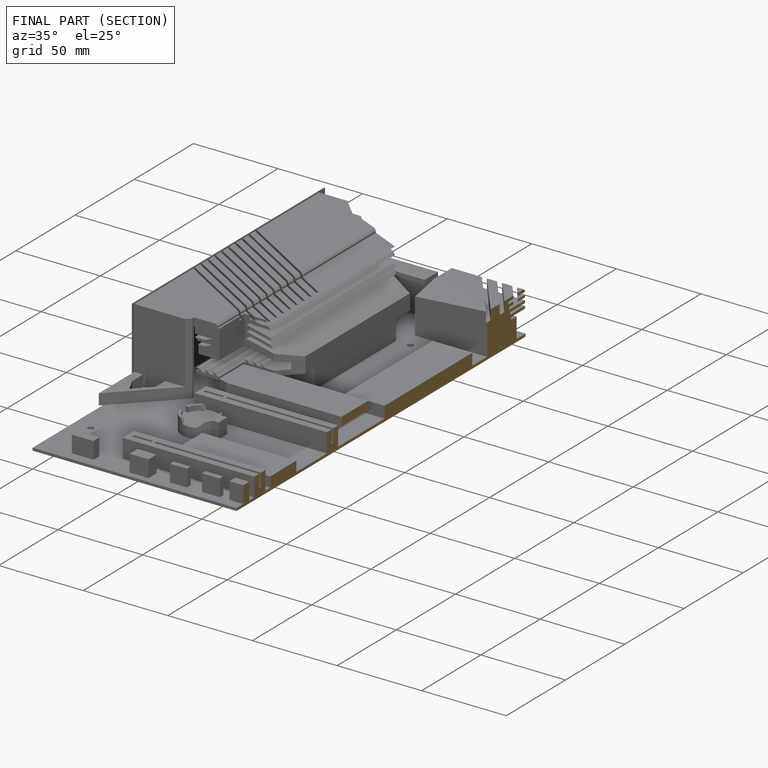
[diagram: finished part — half-section view (interior)]
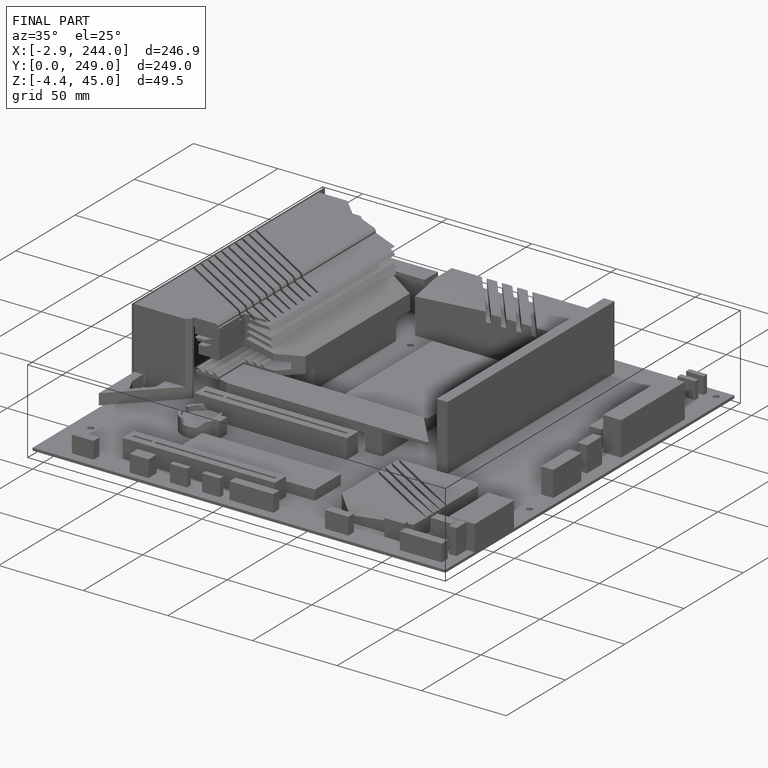
[diagram: finished part — iso view with bounding-box wireframe]
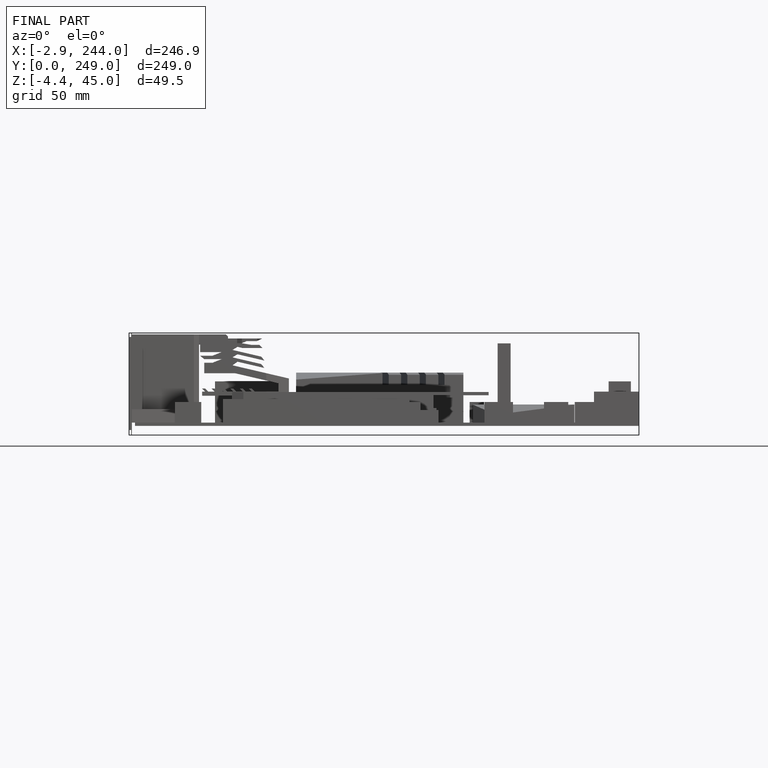
[diagram: finished part — front view with bounding-box wireframe]
